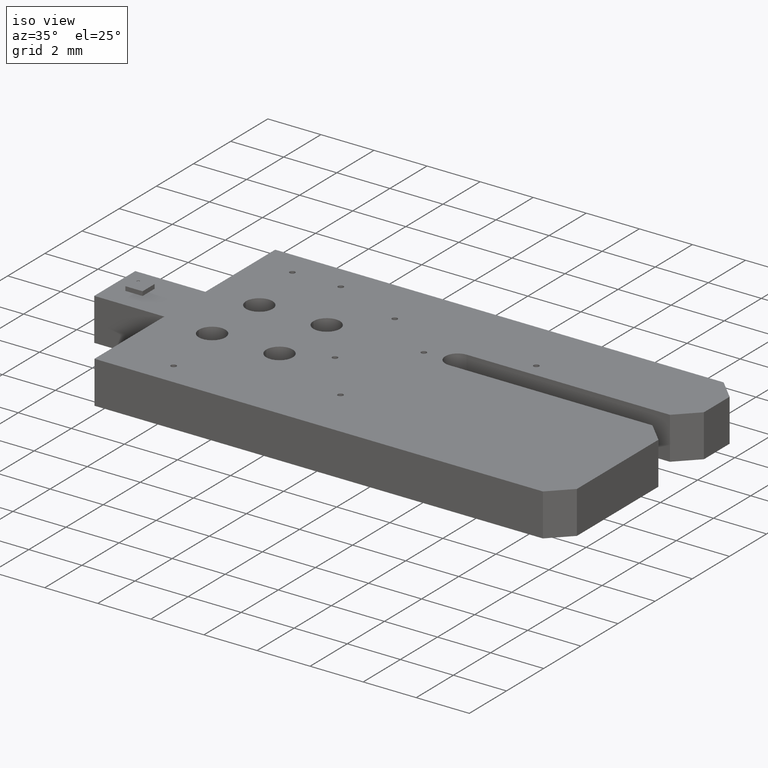
[diagram: clean part render]
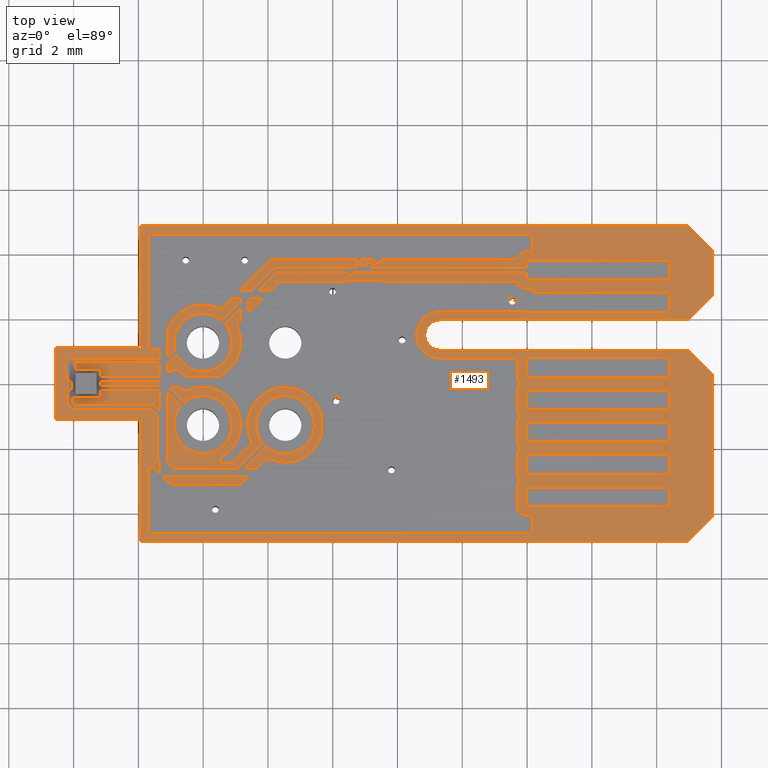
[diagram: tour spotlight — one face highlighted and labeled with its STEP entity id]
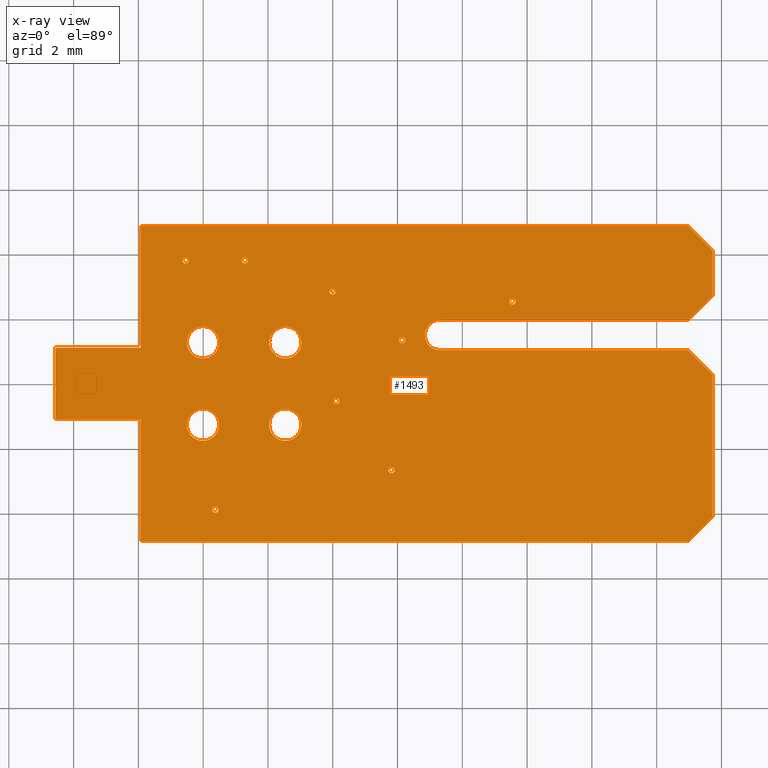
[diagram: x-ray of the same camera — body ghosted, this tour face saturated]
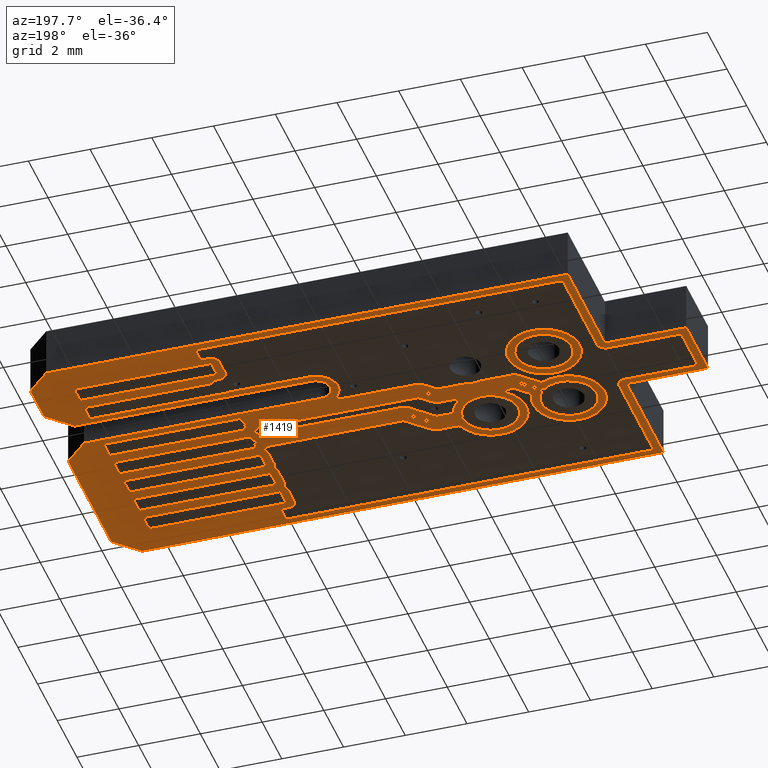
[diagram: tour spotlight — one face highlighted and labeled with its STEP entity id]
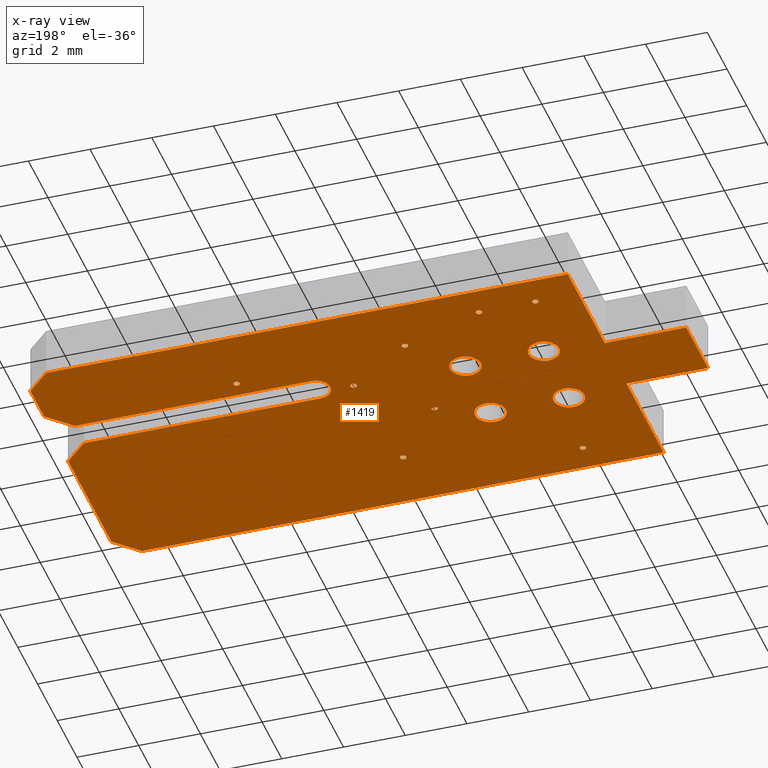
[diagram: x-ray of the same camera — body ghosted, this tour face saturated]
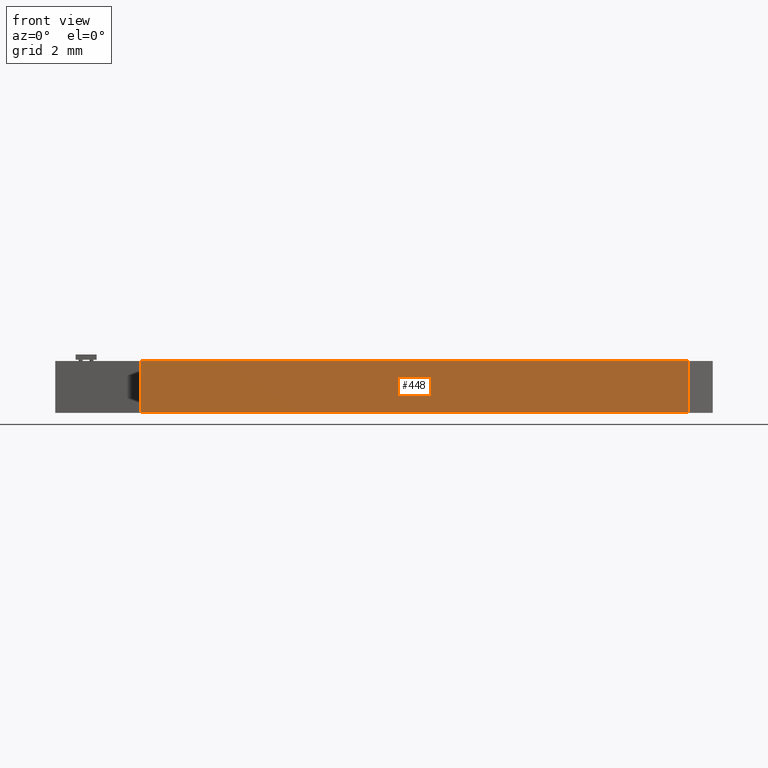
[diagram: tour spotlight — one face highlighted and labeled with its STEP entity id]
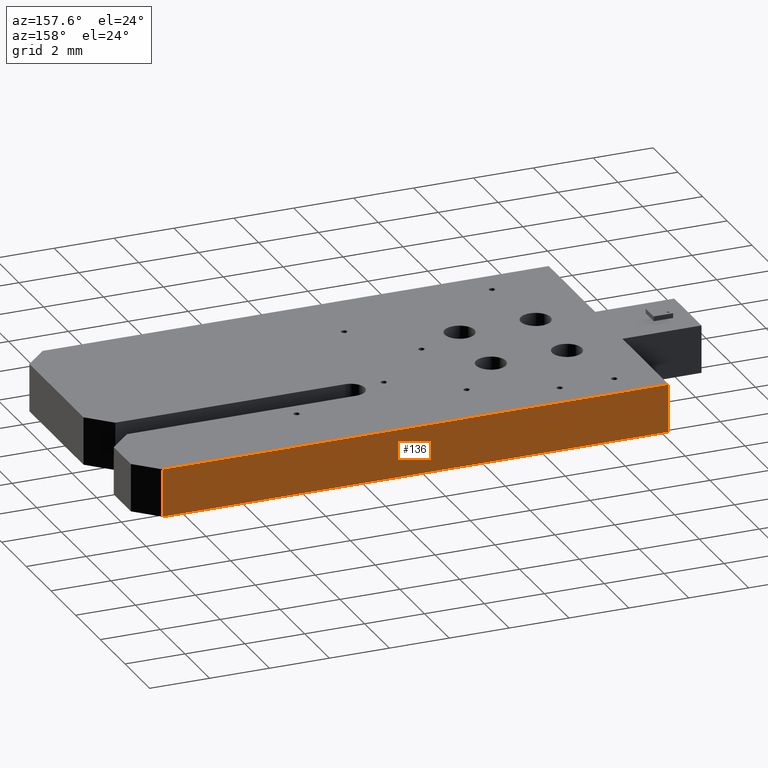
[diagram: tour spotlight — one face highlighted and labeled with its STEP entity id]
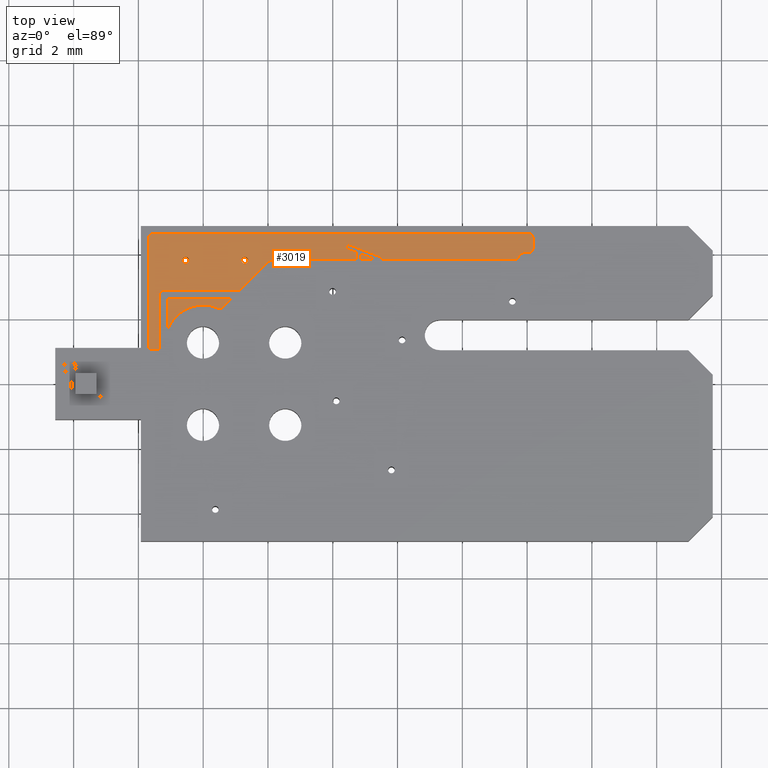
[diagram: tour spotlight — one face highlighted and labeled with its STEP entity id]
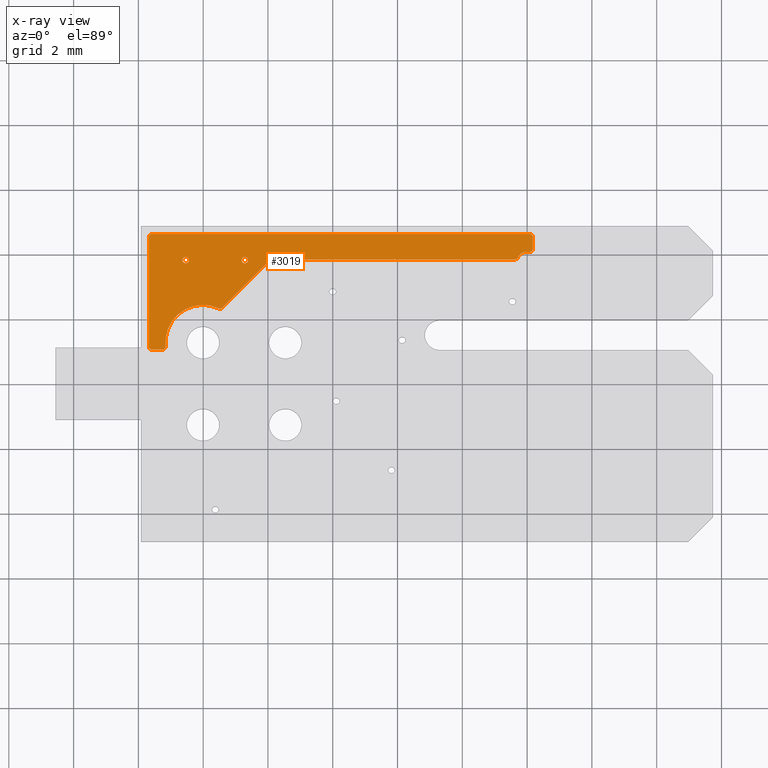
[diagram: x-ray of the same camera — body ghosted, this tour face saturated]
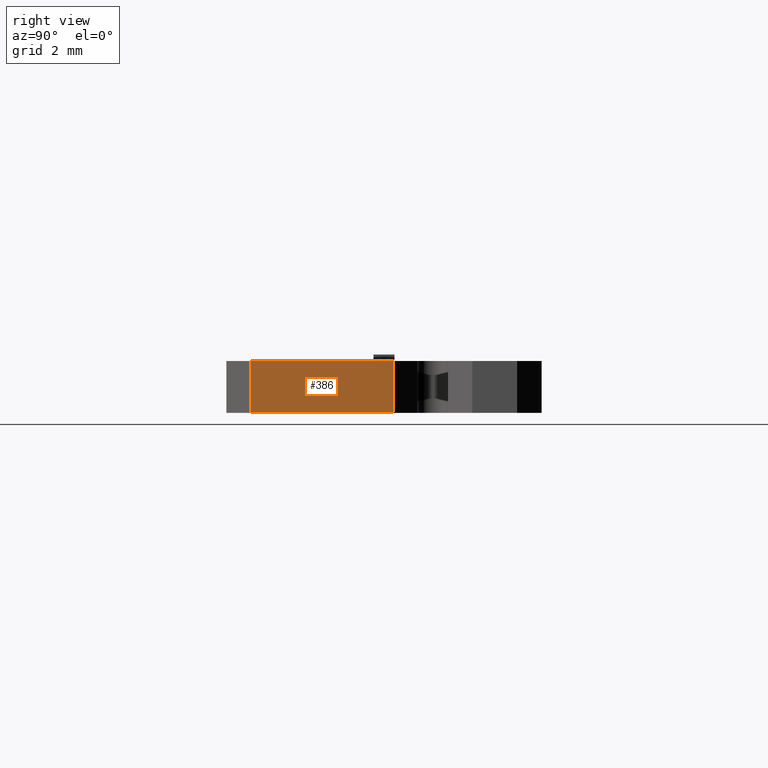
[diagram: tour spotlight — one face highlighted and labeled with its STEP entity id]
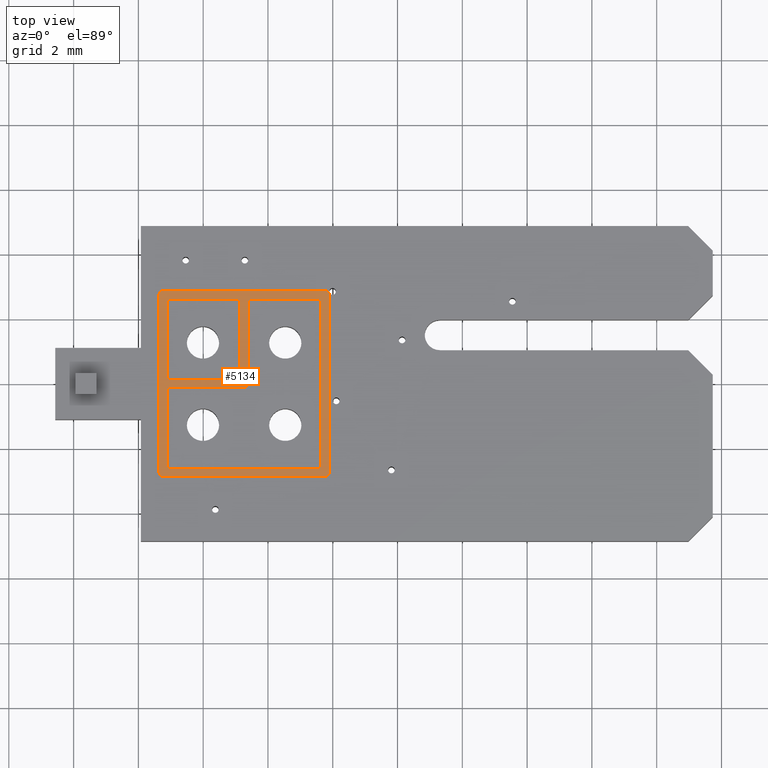
[diagram: tour spotlight — one face highlighted and labeled with its STEP entity id]
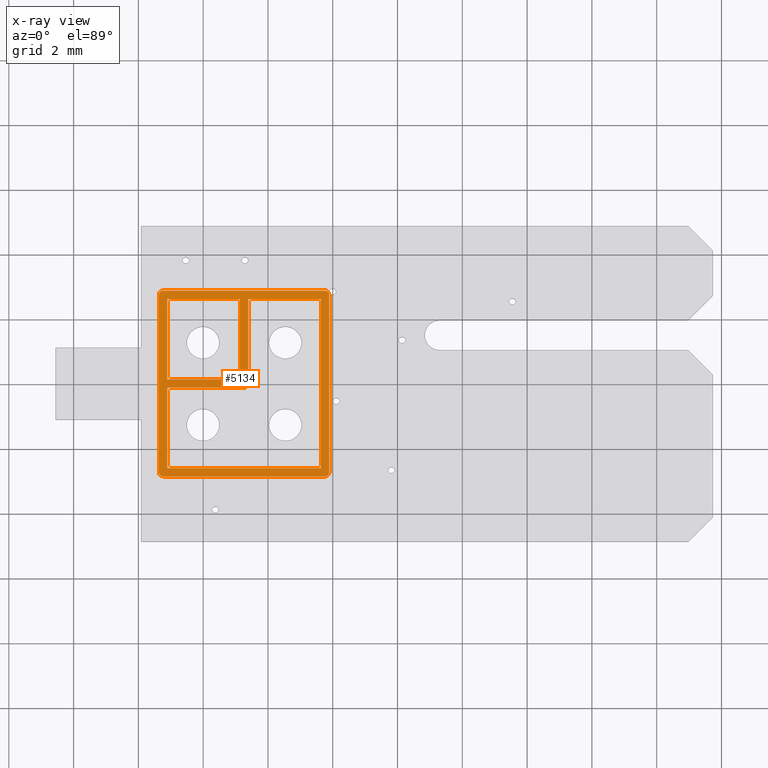
[diagram: x-ray of the same camera — body ghosted, this tour face saturated]
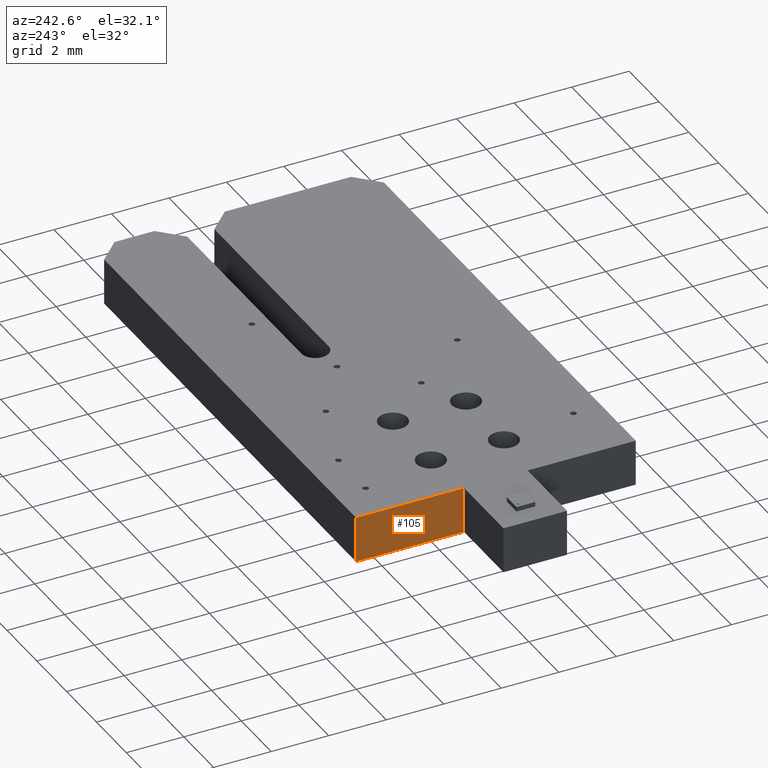
[diagram: tour spotlight — one face highlighted and labeled with its STEP entity id]
A machine part: a face-by-face anatomy tour. The part has 103 B-rep faces; the first image is the clean iso view, then the 8 largest visible faces are spotlighted one at a time (largest first), each with its STEP entity span.

Face 1 — top view, entity #1493. An x-ray twin of the same camera follows (body ghosted, this face saturated) — the face is partly hidden behind the body. In plain terms, the highlighted planar face has unit normal (-0, -0, -1).
Definition (entity closure, byte-faithful):
#70 = VERTEX_POINT('',#71);
#71 = CARTESIAN_POINT('',(4.064008128016,1.104902209804,1.600025400051)
  );
#77 = EDGE_CURVE('',#70,#78,#80,.T.);
#78 = VERTEX_POINT('',#79);
#79 = CARTESIAN_POINT('',(4.076708153416,1.117602235204,1.600025400051)
  );
#80 = CIRCLE('',#81,1.270002540005E-02);
#81 = AXIS2_PLACEMENT_3D('',#82,#83,#84);
#82 = CARTESIAN_POINT('',(4.064008128016,1.117602235204,1.600025400051)
  );
#83 = DIRECTION('',(0.,0.,1.));
#84 = DIRECTION('',(8.789254920238E-15,-1.,0.));
#110 = EDGE_CURVE('',#78,#111,#113,.T.);
#111 = VERTEX_POINT('',#112);
#112 = CARTESIAN_POINT('',(4.076708153416,4.864109728219,1.600025400051)
  );
#113 = LINE('',#114,#115);
#114 = CARTESIAN_POINT('',(4.076708153416,1.117602235204,1.600025400051)
  );
#115 = VECTOR('',#116,1.);
#116 = DIRECTION('',(0.,1.,0.));
#141 = EDGE_CURVE('',#111,#142,#144,.T.);
#142 = VERTEX_POINT('',#143);
#143 = CARTESIAN_POINT('',(20.975181438121,4.864109728219,1.600025400051
    ));
#144 = LINE('',#145,#146);
#145 = CARTESIAN_POINT('',(4.076708153416,4.864109728219,1.600025400051)
  );
#146 = VECTOR('',#147,1.);
#147 = DIRECTION('',(1.,0.,0.));
#172 = EDGE_CURVE('',#142,#173,#175,.T.);
#173 = VERTEX_POINT('',#174);
#174 = CARTESIAN_POINT('',(21.729743459487,4.109547706853,1.600025400051
    ));
#175 = LINE('',#176,#177);
#176 = CARTESIAN_POINT('',(20.975181438121,4.864109728219,1.600025400051
    ));
#177 = VECTOR('',#178,1.);
#178 = DIRECTION('',(0.707106781187,-0.707106781187,0.));
#203 = EDGE_CURVE('',#173,#204,#206,.T.);
#204 = VERTEX_POINT('',#205);
#205 = CARTESIAN_POINT('',(21.729743459487,2.725605963454,1.600025400051
    ));
#206 = LINE('',#207,#208);
#207 = CARTESIAN_POINT('',(21.729743459487,4.109547706853,1.600025400051
    ));
#208 = VECTOR('',#209,1.);
#209 = DIRECTION('',(0.,-1.,0.));
#234 = EDGE_CURVE('',#204,#235,#237,.T.);
#235 = VERTEX_POINT('',#236);
#236 = CARTESIAN_POINT('',(20.975181438121,1.971043942088,1.600025400051
    ));
#237 = LINE('',#238,#239);
#238 = CARTESIAN_POINT('',(21.729743459487,2.725605963454,1.600025400051
    ));
#239 = VECTOR('',#240,1.);
#240 = DIRECTION('',(-0.707106781187,-0.707106781187,0.));
#265 = EDGE_CURVE('',#235,#266,#268,.T.);
#266 = VERTEX_POINT('',#267);
#267 = CARTESIAN_POINT('',(13.309626619253,1.971043942088,1.600025400051
    ));
#268 = LINE('',#269,#270);
#269 = CARTESIAN_POINT('',(20.975181438121,1.971043942088,1.600025400051
    ));
#270 = VECTOR('',#271,1.);
#271 = DIRECTION('',(-1.,1.737992436335E-16,0.));
#296 = EDGE_CURVE('',#266,#297,#299,.T.);
#297 = VERTEX_POINT('',#298);
#298 = CARTESIAN_POINT('',(13.309626619253,1.031242062484,1.600025400051
    ));
#299 = CIRCLE('',#300,0.469900939802);
#300 = AXIS2_PLACEMENT_3D('',#301,#302,#303);
#301 = CARTESIAN_POINT('',(13.309626619253,1.501143002286,1.600025400051
    ));
#302 = DIRECTION('',(0.,0.,1.));
#303 = DIRECTION('',(-1.110223024625E-16,1.,0.));
#329 = EDGE_CURVE('',#297,#330,#332,.T.);
#330 = VERTEX_POINT('',#331);
#331 = CARTESIAN_POINT('',(20.975181438121,1.031242062484,1.600025400051
    ));
#332 = LINE('',#333,#334);
#333 = CARTESIAN_POINT('',(13.309626619253,1.031242062484,1.600025400051
    ));
#334 = VECTOR('',#335,1.);
#335 = DIRECTION('',(1.,-8.689962181674E-17,0.));
#360 = EDGE_CURVE('',#330,#361,#363,.T.);
#361 = VERTEX_POINT('',#362);
#362 = CARTESIAN_POINT('',(21.729743459487,0.276680041118,1.600025400051
    ));
#363 = LINE('',#364,#365);
#364 = CARTESIAN_POINT('',(20.975181438121,1.031242062484,1.600025400051
    ));
#365 = VECTOR('',#366,1.);
#366 = DIRECTION('',(0.707106781187,-0.707106781187,0.));
#391 = EDGE_CURVE('',#361,#392,#394,.T.);
#392 = VERTEX_POINT('',#393);
#393 = CARTESIAN_POINT('',(21.729743459487,-4.109547706853,
    1.600025400051));
#394 = LINE('',#395,#396);
#395 = CARTESIAN_POINT('',(21.729743459487,0.276680041118,1.600025400051
    ));
#396 = VECTOR('',#397,1.);
#397 = DIRECTION('',(0.,-1.,0.));
#422 = EDGE_CURVE('',#392,#423,#425,.T.);
#423 = VERTEX_POINT('',#424);
#424 = CARTESIAN_POINT('',(20.975181438121,-4.864109728219,
    1.600025400051));
#425 = LINE('',#426,#427);
#426 = CARTESIAN_POINT('',(21.729743459487,-4.109547706853,
    1.600025400051));
#427 = VECTOR('',#428,1.);
#428 = DIRECTION('',(-0.707106781187,-0.707106781187,0.));
#453 = EDGE_CURVE('',#423,#454,#456,.T.);
#454 = VERTEX_POINT('',#455);
#455 = CARTESIAN_POINT('',(4.076708153416,-4.864109728219,1.600025400051
    ));
#456 = LINE('',#457,#458);
#457 = CARTESIAN_POINT('',(20.975181438121,-4.864109728219,
    1.600025400051));
#458 = VECTOR('',#459,1.);
#459 = DIRECTION('',(-1.,0.,0.));
#484 = EDGE_CURVE('',#454,#485,#487,.T.);
#485 = VERTEX_POINT('',#486);
#486 = CARTESIAN_POINT('',(4.076708153416,-1.117602235204,1.600025400051
    ));
#487 = LINE('',#488,#489);
#488 = CARTESIAN_POINT('',(4.076708153416,-4.864109728219,1.600025400051
    ));
#489 = VECTOR('',#490,1.);
#490 = DIRECTION('',(0.,1.,0.));
#515 = EDGE_CURVE('',#485,#516,#518,.T.);
#516 = VERTEX_POINT('',#517);
#517 = CARTESIAN_POINT('',(4.064008128016,-1.104902209804,1.600025400051
    ));
#518 = CIRCLE('',#519,1.270002540005E-02);
#519 = AXIS2_PLACEMENT_3D('',#520,#521,#522);
#520 = CARTESIAN_POINT('',(4.064008128016,-1.117602235204,1.600025400051
    ));
#521 = DIRECTION('',(0.,-0.,1.));
#522 = DIRECTION('',(1.,-8.692669701335E-15,-0.));
#548 = EDGE_CURVE('',#516,#549,#551,.T.);
#549 = VERTEX_POINT('',#550);
#550 = CARTESIAN_POINT('',(1.435102870206,-1.104902209804,1.600025400051
    ));
#551 = LINE('',#552,#553);
#552 = CARTESIAN_POINT('',(4.064008128016,-1.104902209804,1.600025400051
    ));
#553 = VECTOR('',#554,1.);
#554 = DIRECTION('',(-1.,0.,0.));
#579 = EDGE_CURVE('',#549,#580,#582,.T.);
#580 = VERTEX_POINT('',#581);
#581 = CARTESIAN_POINT('',(1.435102870206,1.104902209804,1.600025400051)
  );
#582 = LINE('',#583,#584);
#583 = CARTESIAN_POINT('',(1.435102870206,-1.104902209804,1.600025400051
    ));
#584 = VECTOR('',#585,1.);
#585 = DIRECTION('',(0.,1.,0.));
#610 = EDGE_CURVE('',#580,#70,#611,.T.);
#611 = LINE('',#612,#613);
#612 = CARTESIAN_POINT('',(1.435102870206,1.104902209804,1.600025400051)
  );
#613 = VECTOR('',#614,1.);
#614 = DIRECTION('',(1.,0.,0.));
#634 = VERTEX_POINT('',#635);
#635 = CARTESIAN_POINT('',(5.562611125222,3.810007620015,1.600025400051)
  );
#641 = EDGE_CURVE('',#634,#642,#644,.T.);
#642 = VERTEX_POINT('',#643);
#643 = CARTESIAN_POINT('',(5.359410718821,3.810007620015,1.600025400051)
  );
#644 = CIRCLE('',#645,0.1016002032);
#645 = AXIS2_PLACEMENT_3D('',#646,#647,#648);
#646 = CARTESIAN_POINT('',(5.461010922022,3.810007620015,1.600025400051)
  );
#647 = DIRECTION('',(0.,0.,1.));
#648 = DIRECTION('',(1.,1.110223024625E-16,-0.));
#674 = EDGE_CURVE('',#642,#634,#675,.T.);
#675 = CIRCLE('',#676,0.1016002032);
#676 = AXIS2_PLACEMENT_3D('',#677,#678,#679);
#677 = CARTESIAN_POINT('',(5.461010922022,3.810007620015,1.600025400051)
  );
#678 = DIRECTION('',(0.,0.,1.));
#679 = DIRECTION('',(-1.,-1.110223024625E-16,0.));
#700 = VERTEX_POINT('',#701);
#701 = CARTESIAN_POINT('',(6.494411988824,-1.270002540005,1.600025400051
    ));
#707 = EDGE_CURVE('',#700,#708,#710,.T.);
#708 = VERTEX_POINT('',#709);
#709 = CARTESIAN_POINT('',(5.494411988824,-1.270002540005,1.600025400051
    ));
#710 = CIRCLE('',#711,0.5);
#711 = AXIS2_PLACEMENT_3D('',#712,#713,#714);
#712 = CARTESIAN_POINT('',(5.994411988824,-1.270002540005,1.600025400051
    ));
#713 = DIRECTION('',(0.,0.,1.));
#714 = DIRECTION('',(1.,1.110223024625E-16,-0.));
#740 = EDGE_CURVE('',#708,#700,#741,.T.);
#741 = CIRCLE('',#742,0.5);
#742 = AXIS2_PLACEMENT_3D('',#743,#744,#745);
#743 = CARTESIAN_POINT('',(5.994411988824,-1.270002540005,1.600025400051
    ));
#744 = DIRECTION('',(0.,0.,1.));
#745 = DIRECTION('',(-1.,-1.110223024625E-16,0.));
#766 = VERTEX_POINT('',#767);
#767 = CARTESIAN_POINT('',(6.494411988824,1.270002540005,1.600025400051)
  );
#773 = EDGE_CURVE('',#766,#774,#776,.T.);
#774 = VERTEX_POINT('',#775);
#775 = CARTESIAN_POINT('',(5.494411988824,1.270002540005,1.600025400051)
  );
#776 = CIRCLE('',#777,0.5);
#777 = AXIS2_PLACEMENT_3D('',#778,#779,#780);
#778 = CARTESIAN_POINT('',(5.994411988824,1.270002540005,1.600025400051)
  );
#779 = DIRECTION('',(0.,0.,1.));
#780 = DIRECTION('',(1.,1.110223024625E-16,-0.));
#806 = EDGE_CURVE('',#774,#766,#807,.T.);
#807 = CIRCLE('',#808,0.5);
#808 = AXIS2_PLACEMENT_3D('',#809,#810,#811);
#809 = CARTESIAN_POINT('',(5.994411988824,1.270002540005,1.600025400051)
  );
#810 = DIRECTION('',(0.,0.,1.));
#811 = DIRECTION('',(-1.,-1.110223024625E-16,0.));
#832 = VERTEX_POINT('',#833);
#833 = CARTESIAN_POINT('',(6.477012954026,-3.886207772416,1.600025400051
    ));
#839 = EDGE_CURVE('',#832,#840,#842,.T.);
#840 = VERTEX_POINT('',#841);
#841 = CARTESIAN_POINT('',(6.273812547625,-3.886207772416,1.600025400051
    ));
#842 = CIRCLE('',#843,0.1016002032);
#843 = AXIS2_PLACEMENT_3D('',#844,#845,#846);
#844 = CARTESIAN_POINT('',(6.375412750826,-3.886207772416,1.600025400051
    ));
#845 = DIRECTION('',(0.,0.,1.));
#846 = DIRECTION('',(1.,1.110223024625E-16,-0.));
#872 = EDGE_CURVE('',#840,#832,#873,.T.);
#873 = CIRCLE('',#874,0.1016002032);
#874 = AXIS2_PLACEMENT_3D('',#875,#876,#877);
#875 = CARTESIAN_POINT('',(6.375412750826,-3.886207772416,1.600025400051
    ));
#876 = DIRECTION('',(0.,0.,1.));
#877 = DIRECTION('',(-1.,-1.110223024625E-16,0.));
#898 = VERTEX_POINT('',#899);
#899 = CARTESIAN_POINT('',(7.388516637033,3.810007620015,1.600025400051)
  );
#905 = EDGE_CURVE('',#898,#906,#908,.T.);
#906 = VERTEX_POINT('',#907);
#907 = CARTESIAN_POINT('',(7.185316230632,3.810007620015,1.600025400051)
  );
#908 = CIRCLE('',#909,0.1016002032);
#909 = AXIS2_PLACEMENT_3D('',#910,#911,#912);
#910 = CARTESIAN_POINT('',(7.286916433833,3.810007620015,1.600025400051)
  );
#911 = DIRECTION('',(0.,0.,1.));
#912 = DIRECTION('',(1.,1.110223024625E-16,-0.));
#938 = EDGE_CURVE('',#906,#898,#939,.T.);
#939 = CIRCLE('',#940,0.1016002032);
#940 = AXIS2_PLACEMENT_3D('',#941,#942,#943);
#941 = CARTESIAN_POINT('',(7.286916433833,3.810007620015,1.600025400051)
  );
#942 = DIRECTION('',(0.,0.,1.));
#943 = DIRECTION('',(-1.,-1.110223024625E-16,0.));
#964 = VERTEX_POINT('',#965);
#965 = CARTESIAN_POINT('',(9.034417068834,-1.270002540005,1.600025400051
    ));
#971 = EDGE_CURVE('',#964,#972,#974,.T.);
#972 = VERTEX_POINT('',#973);
#973 = CARTESIAN_POINT('',(8.034417068834,-1.270002540005,1.600025400051
    ));
#974 = CIRCLE('',#975,0.5);
#975 = AXIS2_PLACEMENT_3D('',#976,#977,#978);
#976 = CARTESIAN_POINT('',(8.534417068834,-1.270002540005,1.600025400051
    ));
#977 = DIRECTION('',(0.,0.,1.));
#978 = DIRECTION('',(1.,1.110223024625E-16,-0.));
#1004 = EDGE_CURVE('',#972,#964,#1005,.T.);
#1005 = CIRCLE('',#1006,0.5);
#1006 = AXIS2_PLACEMENT_3D('',#1007,#1008,#1009);
#1007 = CARTESIAN_POINT('',(8.534417068834,-1.270002540005,
    1.600025400051));
#1008 = DIRECTION('',(0.,0.,1.));
#1009 = DIRECTION('',(-1.,-1.110223024625E-16,0.));
#1030 = VERTEX_POINT('',#1031);
#1031 = CARTESIAN_POINT('',(9.034417068834,1.270002540005,1.600025400051
    ));
#1037 = EDGE_CURVE('',#1030,#1038,#1040,.T.);
#1038 = VERTEX_POINT('',#1039);
#1039 = CARTESIAN_POINT('',(8.034417068834,1.270002540005,1.600025400051
    ));
#1040 = CIRCLE('',#1041,0.5);
#1041 = AXIS2_PLACEMENT_3D('',#1042,#1043,#1044);
#1042 = CARTESIAN_POINT('',(8.534417068834,1.270002540005,1.600025400051
    ));
#1043 = DIRECTION('',(0.,0.,1.));
#1044 = DIRECTION('',(1.,1.110223024625E-16,-0.));
#1070 = EDGE_CURVE('',#1038,#1030,#1071,.T.);
#1071 = CIRCLE('',#1072,0.5);
#1072 = AXIS2_PLACEMENT_3D('',#1073,#1074,#1075);
#1073 = CARTESIAN_POINT('',(8.534417068834,1.270002540005,1.600025400051
    ));
#1074 = DIRECTION('',(0.,0.,1.));
#1075 = DIRECTION('',(-1.,-1.110223024625E-16,0.));
#1096 = VERTEX_POINT('',#1097);
#1097 = CARTESIAN_POINT('',(10.096898653797,2.844805689611,
    1.600025400051));
#1103 = EDGE_CURVE('',#1096,#1104,#1106,.T.);
#1104 = VERTEX_POINT('',#1105);
#1105 = CARTESIAN_POINT('',(9.893698247396,2.844805689611,1.600025400051
    ));
#1106 = CIRCLE('',#1107,0.1016002032);
#1107 = AXIS2_PLACEMENT_3D('',#1108,#1109,#1110);
#1108 = CARTESIAN_POINT('',(9.995298450597,2.844805689611,1.600025400051
    ));
#1109 = DIRECTION('',(0.,0.,1.));
#1110 = DIRECTION('',(1.,1.110223024625E-16,-0.));
#1136 = EDGE_CURVE('',#1104,#1096,#1137,.T.);
#1137 = CIRCLE('',#1138,0.1016002032);
#1138 = AXIS2_PLACEMENT_3D('',#1139,#1140,#1141);
#1139 = CARTESIAN_POINT('',(9.995298450597,2.844805689611,1.600025400051
    ));
#1140 = DIRECTION('',(0.,0.,1.));
#1141 = DIRECTION('',(-1.,-1.110223024625E-16,0.));
#1162 = VERTEX_POINT('',#1163);
#1163 = CARTESIAN_POINT('',(10.210820421641,-0.533401066802,
    1.600025400051));
#1169 = EDGE_CURVE('',#1162,#1170,#1172,.T.);
#1170 = VERTEX_POINT('',#1171);
#1171 = CARTESIAN_POINT('',(10.00762001524,-0.533401066802,
    1.600025400051));
#1172 = CIRCLE('',#1173,0.1016002032);
#1173 = AXIS2_PLACEMENT_3D('',#1174,#1175,#1176);
#1174 = CARTESIAN_POINT('',(10.10922021844,-0.533401066802,
    1.600025400051));
#1175 = DIRECTION('',(0.,0.,1.));
#1176 = DIRECTION('',(1.,1.110223024625E-16,-0.));
#1202 = EDGE_CURVE('',#1170,#1162,#1203,.T.);
#1203 = CIRCLE('',#1204,0.1016002032);
#1204 = AXIS2_PLACEMENT_3D('',#1205,#1206,#1207);
#1205 = CARTESIAN_POINT('',(10.10922021844,-0.533401066802,
    1.600025400051));
#1206 = DIRECTION('',(0.,0.,1.));
#1207 = DIRECTION('',(-1.,-1.110223024625E-16,0.));
#1228 = VERTEX_POINT('',#1229);
#1229 = CARTESIAN_POINT('',(11.912623825248,-2.667005334011,
    1.600025400051));
#1235 = EDGE_CURVE('',#1228,#1236,#1238,.T.);
#1236 = VERTEX_POINT('',#1237);
#1237 = CARTESIAN_POINT('',(11.709423418847,-2.667005334011,
    1.600025400051));
#1238 = CIRCLE('',#1239,0.1016002032);
#1239 = AXIS2_PLACEMENT_3D('',#1240,#1241,#1242);
#1240 = CARTESIAN_POINT('',(11.811023622047,-2.667005334011,
    1.600025400051));
#1241 = DIRECTION('',(0.,0.,1.));
#1242 = DIRECTION('',(1.,1.110223024625E-16,-0.));
#1268 = EDGE_CURVE('',#1236,#1228,#1269,.T.);
#1269 = CIRCLE('',#1270,0.1016002032);
#1270 = AXIS2_PLACEMENT_3D('',#1271,#1272,#1273);
#1271 = CARTESIAN_POINT('',(11.811023622047,-2.667005334011,
    1.600025400051));
#1272 = DIRECTION('',(0.,0.,1.));
#1273 = DIRECTION('',(-1.,-1.110223024625E-16,0.));
#1294 = VERTEX_POINT('',#1295);
#1295 = CARTESIAN_POINT('',(12.242824485649,1.346202692405,
    1.600025400051));
#1301 = EDGE_CURVE('',#1294,#1302,#1304,.T.);
#1302 = VERTEX_POINT('',#1303);
#1303 = CARTESIAN_POINT('',(12.039624079248,1.346202692405,
    1.600025400051));
#1304 = CIRCLE('',#1305,0.1016002032);
#1305 = AXIS2_PLACEMENT_3D('',#1306,#1307,#1308);
#1306 = CARTESIAN_POINT('',(12.141224282449,1.346202692405,
    1.600025400051));
#1307 = DIRECTION('',(0.,0.,1.));
#1308 = DIRECTION('',(1.,1.110223024625E-16,-0.));
#1334 = EDGE_CURVE('',#1302,#1294,#1335,.T.);
#1335 = CIRCLE('',#1336,0.1016002032);
#1336 = AXIS2_PLACEMENT_3D('',#1337,#1338,#1339);
#1337 = CARTESIAN_POINT('',(12.141224282449,1.346202692405,
    1.600025400051));
#1338 = DIRECTION('',(0.,0.,1.));
#1339 = DIRECTION('',(-1.,-1.110223024625E-16,0.));
#1360 = VERTEX_POINT('',#1361);
#1361 = CARTESIAN_POINT('',(15.646431292863,2.54000508001,1.600025400051
    ));
#1367 = EDGE_CURVE('',#1360,#1368,#1370,.T.);
#1368 = VERTEX_POINT('',#1369);
#1369 = CARTESIAN_POINT('',(15.443230886462,2.54000508001,1.600025400051
    ));
#1370 = CIRCLE('',#1371,0.1016002032);
#1371 = AXIS2_PLACEMENT_3D('',#1372,#1373,#1374);
#1372 = CARTESIAN_POINT('',(15.544831089662,2.54000508001,1.600025400051
    ));
#1373 = DIRECTION('',(0.,0.,1.));
#1374 = DIRECTION('',(1.,1.110223024625E-16,-0.));
#1400 = EDGE_CURVE('',#1368,#1360,#1401,.T.);
#1401 = CIRCLE('',#1402,0.1016002032);
#1402 = AXIS2_PLACEMENT_3D('',#1403,#1404,#1405);
#1403 = CARTESIAN_POINT('',(15.544831089662,2.54000508001,1.600025400051
    ));
#1404 = DIRECTION('',(0.,0.,1.));
#1405 = DIRECTION('',(-1.,-1.110223024625E-16,0.));
#1493 = ADVANCED_FACE('',(#1494,#1514,#1518,#1522,#1526,#1530,#1534,
    #1538,#1542,#1546,#1550,#1554,#1558),#1562,.F.);
#1494 = FACE_BOUND('',#1495,.F.);
#1495 = EDGE_LOOP('',(#1496,#1497,#1498,#1499,#1500,#1501,#1502,#1503,
    #1504,#1505,#1506,#1507,#1508,#1509,#1510,#1511,#1512,#1513));
#1496 = ORIENTED_EDGE('',*,*,#77,.T.);
#1497 = ORIENTED_EDGE('',*,*,#110,.T.);
#1498 = ORIENTED_EDGE('',*,*,#141,.T.);
#1499 = ORIENTED_EDGE('',*,*,#172,.T.);
#1500 = ORIENTED_EDGE('',*,*,#203,.T.);
#1501 = ORIENTED_EDGE('',*,*,#234,.T.);
#1502 = ORIENTED_EDGE('',*,*,#265,.T.);
#1503 = ORIENTED_EDGE('',*,*,#296,.T.);
#1504 = ORIENTED_EDGE('',*,*,#329,.T.);
#1505 = ORIENTED_EDGE('',*,*,#360,.T.);
#1506 = ORIENTED_EDGE('',*,*,#391,.T.);
#1507 = ORIENTED_EDGE('',*,*,#422,.T.);
#1508 = ORIENTED_EDGE('',*,*,#453,.T.);
#1509 = ORIENTED_EDGE('',*,*,#484,.T.);
#1510 = ORIENTED_EDGE('',*,*,#515,.T.);
#1511 = ORIENTED_EDGE('',*,*,#548,.T.);
#1512 = ORIENTED_EDGE('',*,*,#579,.T.);
#1513 = ORIENTED_EDGE('',*,*,#610,.T.);
#1514 = FACE_BOUND('',#1515,.F.);
#1515 = EDGE_LOOP('',(#1516,#1517));
#1516 = ORIENTED_EDGE('',*,*,#641,.T.);
#1517 = ORIENTED_EDGE('',*,*,#674,.T.);
#1518 = FACE_BOUND('',#1519,.F.);
#1519 = EDGE_LOOP('',(#1520,#1521));
#1520 = ORIENTED_EDGE('',*,*,#707,.T.);
#1521 = ORIENTED_EDGE('',*,*,#740,.T.);
#1522 = FACE_BOUND('',#1523,.F.);
#1523 = EDGE_LOOP('',(#1524,#1525));
#1524 = ORIENTED_EDGE('',*,*,#773,.T.);
#1525 = ORIENTED_EDGE('',*,*,#806,.T.);
#1526 = FACE_BOUND('',#1527,.F.);
#1527 = EDGE_LOOP('',(#1528,#1529));
#1528 = ORIENTED_EDGE('',*,*,#839,.T.);
#1529 = ORIENTED_EDGE('',*,*,#872,.T.);
#1530 = FACE_BOUND('',#1531,.F.);
#1531 = EDGE_LOOP('',(#1532,#1533));
#1532 = ORIENTED_EDGE('',*,*,#905,.T.);
#1533 = ORIENTED_EDGE('',*,*,#938,.T.);
#1534 = FACE_BOUND('',#1535,.F.);
#1535 = EDGE_LOOP('',(#1536,#1537));
#1536 = ORIENTED_EDGE('',*,*,#971,.T.);
#1537 = ORIENTED_EDGE('',*,*,#1004,.T.);
#1538 = FACE_BOUND('',#1539,.F.);
#1539 = EDGE_LOOP('',(#1540,#1541));
#1540 = ORIENTED_EDGE('',*,*,#1037,.T.);
#1541 = ORIENTED_EDGE('',*,*,#1070,.T.);
#1542 = FACE_BOUND('',#1543,.F.);
#1543 = EDGE_LOOP('',(#1544,#1545));
#1544 = ORIENTED_EDGE('',*,*,#1103,.T.);
#1545 = ORIENTED_EDGE('',*,*,#1136,.T.);
#1546 = FACE_BOUND('',#1547,.F.);
#1547 = EDGE_LOOP('',(#1548,#1549));
#1548 = ORIENTED_EDGE('',*,*,#1169,.T.);
#1549 = ORIENTED_EDGE('',*,*,#1202,.T.);
#1550 = FACE_BOUND('',#1551,.F.);
#1551 = EDGE_LOOP('',(#1552,#1553));
#1552 = ORIENTED_EDGE('',*,*,#1235,.T.);
#1553 = ORIENTED_EDGE('',*,*,#1268,.T.);
#1554 = FACE_BOUND('',#1555,.F.);
#1555 = EDGE_LOOP('',(#1556,#1557));
#1556 = ORIENTED_EDGE('',*,*,#1301,.T.);
#1557 = ORIENTED_EDGE('',*,*,#1334,.T.);
#1558 = FACE_BOUND('',#1559,.F.);
#1559 = EDGE_LOOP('',(#1560,#1561));
#1560 = ORIENTED_EDGE('',*,*,#1367,.T.);
#1561 = ORIENTED_EDGE('',*,*,#1400,.T.);
#1562 = PLANE('',#1563);
#1563 = AXIS2_PLACEMENT_3D('',#1564,#1565,#1566);
#1564 = CARTESIAN_POINT('',(12.826647516355,0.326264867474,
    1.600025400051));
#1565 = DIRECTION('',(-0.,-0.,-1.));
#1566 = DIRECTION('',(-1.,0.,0.));

Face 2 — auxiliary view, entity #1419. An x-ray twin of the same camera follows (body ghosted, this face saturated) — the face is partly hidden behind the body. In plain terms, the highlighted planar face has unit normal (-0, -0, -1).
Definition (entity closure, byte-faithful):
#68 = VERTEX_POINT('',#69);
#69 = CARTESIAN_POINT('',(4.064008128016,1.104902209804,0.));
#87 = VERTEX_POINT('',#88);
#88 = CARTESIAN_POINT('',(4.076708153416,1.117602235204,0.));
#94 = EDGE_CURVE('',#68,#87,#95,.T.);
#95 = CIRCLE('',#96,1.270002540005E-02);
#96 = AXIS2_PLACEMENT_3D('',#97,#98,#99);
#97 = CARTESIAN_POINT('',(4.064008128016,1.117602235204,0.));
#98 = DIRECTION('',(0.,0.,1.));
#99 = DIRECTION('',(8.789254920238E-15,-1.,0.));
#119 = VERTEX_POINT('',#120);
#120 = CARTESIAN_POINT('',(4.076708153416,4.864109728219,0.));
#126 = EDGE_CURVE('',#87,#119,#127,.T.);
#127 = LINE('',#128,#129);
#128 = CARTESIAN_POINT('',(4.076708153416,1.117602235204,0.));
#129 = VECTOR('',#130,1.);
#130 = DIRECTION('',(0.,1.,0.));
#150 = VERTEX_POINT('',#151);
#151 = CARTESIAN_POINT('',(20.975181438121,4.864109728219,0.));
#157 = EDGE_CURVE('',#119,#150,#158,.T.);
#158 = LINE('',#159,#160);
#159 = CARTESIAN_POINT('',(4.076708153416,4.864109728219,0.));
#160 = VECTOR('',#161,1.);
#161 = DIRECTION('',(1.,0.,0.));
#181 = VERTEX_POINT('',#182);
#182 = CARTESIAN_POINT('',(21.729743459487,4.109547706853,0.));
#188 = EDGE_CURVE('',#150,#181,#189,.T.);
#189 = LINE('',#190,#191);
#190 = CARTESIAN_POINT('',(20.975181438121,4.864109728219,0.));
#191 = VECTOR('',#192,1.);
#192 = DIRECTION('',(0.707106781187,-0.707106781187,0.));
#212 = VERTEX_POINT('',#213);
#213 = CARTESIAN_POINT('',(21.729743459487,2.725605963454,0.));
#219 = EDGE_CURVE('',#181,#212,#220,.T.);
#220 = LINE('',#221,#222);
#221 = CARTESIAN_POINT('',(21.729743459487,4.109547706853,0.));
#222 = VECTOR('',#223,1.);
#223 = DIRECTION('',(0.,-1.,0.));
#243 = VERTEX_POINT('',#244);
#244 = CARTESIAN_POINT('',(20.975181438121,1.971043942088,0.));
#250 = EDGE_CURVE('',#212,#243,#251,.T.);
#251 = LINE('',#252,#253);
#252 = CARTESIAN_POINT('',(21.729743459487,2.725605963454,0.));
#253 = VECTOR('',#254,1.);
#254 = DIRECTION('',(-0.707106781187,-0.707106781187,0.));
#274 = VERTEX_POINT('',#275);
#275 = CARTESIAN_POINT('',(13.309626619253,1.971043942088,0.));
#281 = EDGE_CURVE('',#243,#274,#282,.T.);
#282 = LINE('',#283,#284);
#283 = CARTESIAN_POINT('',(20.975181438121,1.971043942088,0.));
#284 = VECTOR('',#285,1.);
#285 = DIRECTION('',(-1.,1.737992436335E-16,0.));
#306 = VERTEX_POINT('',#307);
#307 = CARTESIAN_POINT('',(13.309626619253,1.031242062484,0.));
#313 = EDGE_CURVE('',#274,#306,#314,.T.);
#314 = CIRCLE('',#315,0.469900939802);
#315 = AXIS2_PLACEMENT_3D('',#316,#317,#318);
#316 = CARTESIAN_POINT('',(13.309626619253,1.501143002286,0.));
#317 = DIRECTION('',(0.,0.,1.));
#318 = DIRECTION('',(-1.110223024625E-16,1.,0.));
#338 = VERTEX_POINT('',#339);
#339 = CARTESIAN_POINT('',(20.975181438121,1.031242062484,0.));
#345 = EDGE_CURVE('',#306,#338,#346,.T.);
#346 = LINE('',#347,#348);
#347 = CARTESIAN_POINT('',(13.309626619253,1.031242062484,0.));
#348 = VECTOR('',#349,1.);
#349 = DIRECTION('',(1.,-8.689962181674E-17,0.));
#369 = VERTEX_POINT('',#370);
#370 = CARTESIAN_POINT('',(21.729743459487,0.276680041118,0.));
#376 = EDGE_CURVE('',#338,#369,#377,.T.);
#377 = LINE('',#378,#379);
#378 = CARTESIAN_POINT('',(20.975181438121,1.031242062484,0.));
#379 = VECTOR('',#380,1.);
#380 = DIRECTION('',(0.707106781187,-0.707106781187,0.));
#400 = VERTEX_POINT('',#401);
#401 = CARTESIAN_POINT('',(21.729743459487,-4.109547706853,0.));
#407 = EDGE_CURVE('',#369,#400,#408,.T.);
#408 = LINE('',#409,#410);
#409 = CARTESIAN_POINT('',(21.729743459487,0.276680041118,0.));
#410 = VECTOR('',#411,1.);
#411 = DIRECTION('',(0.,-1.,0.));
#431 = VERTEX_POINT('',#432);
#432 = CARTESIAN_POINT('',(20.975181438121,-4.864109728219,0.));
#438 = EDGE_CURVE('',#400,#431,#439,.T.);
#439 = LINE('',#440,#441);
#440 = CARTESIAN_POINT('',(21.729743459487,-4.109547706853,0.));
#441 = VECTOR('',#442,1.);
#442 = DIRECTION('',(-0.707106781187,-0.707106781187,0.));
#462 = VERTEX_POINT('',#463);
#463 = CARTESIAN_POINT('',(4.076708153416,-4.864109728219,0.));
#469 = EDGE_CURVE('',#431,#462,#470,.T.);
#470 = LINE('',#471,#472);
#471 = CARTESIAN_POINT('',(20.975181438121,-4.864109728219,0.));
#472 = VECTOR('',#473,1.);
#473 = DIRECTION('',(-1.,0.,0.));
#493 = VERTEX_POINT('',#494);
#494 = CARTESIAN_POINT('',(4.076708153416,-1.117602235204,0.));
#500 = EDGE_CURVE('',#462,#493,#501,.T.);
#501 = LINE('',#502,#503);
#502 = CARTESIAN_POINT('',(4.076708153416,-4.864109728219,0.));
#503 = VECTOR('',#504,1.);
#504 = DIRECTION('',(0.,1.,0.));
#525 = VERTEX_POINT('',#526);
#526 = CARTESIAN_POINT('',(4.064008128016,-1.104902209804,0.));
#532 = EDGE_CURVE('',#493,#525,#533,.T.);
#533 = CIRCLE('',#534,1.270002540005E-02);
#534 = AXIS2_PLACEMENT_3D('',#535,#536,#537);
#535 = CARTESIAN_POINT('',(4.064008128016,-1.117602235204,0.));
#536 = DIRECTION('',(0.,-0.,1.));
#537 = DIRECTION('',(1.,-8.692669701335E-15,-0.));
#557 = VERTEX_POINT('',#558);
#558 = CARTESIAN_POINT('',(1.435102870206,-1.104902209804,0.));
#564 = EDGE_CURVE('',#525,#557,#565,.T.);
#565 = LINE('',#566,#567);
#566 = CARTESIAN_POINT('',(4.064008128016,-1.104902209804,0.));
#567 = VECTOR('',#568,1.);
#568 = DIRECTION('',(-1.,0.,0.));
#588 = VERTEX_POINT('',#589);
#589 = CARTESIAN_POINT('',(1.435102870206,1.104902209804,0.));
#595 = EDGE_CURVE('',#557,#588,#596,.T.);
#596 = LINE('',#597,#598);
#597 = CARTESIAN_POINT('',(1.435102870206,-1.104902209804,0.));
#598 = VECTOR('',#599,1.);
#599 = DIRECTION('',(0.,1.,0.));
#617 = EDGE_CURVE('',#588,#68,#618,.T.);
#618 = LINE('',#619,#620);
#619 = CARTESIAN_POINT('',(1.435102870206,1.104902209804,0.));
#620 = VECTOR('',#621,1.);
#621 = DIRECTION('',(1.,0.,0.));
#632 = VERTEX_POINT('',#633);
#633 = CARTESIAN_POINT('',(5.562611125222,3.810007620015,0.));
#651 = VERTEX_POINT('',#652);
#652 = CARTESIAN_POINT('',(5.359410718821,3.810007620015,0.));
#658 = EDGE_CURVE('',#632,#651,#659,.T.);
#659 = CIRCLE('',#660,0.1016002032);
#660 = AXIS2_PLACEMENT_3D('',#661,#662,#663);
#661 = CARTESIAN_POINT('',(5.461010922022,3.810007620015,0.));
#662 = DIRECTION('',(0.,0.,1.));
#663 = DIRECTION('',(1.,1.110223024625E-16,-0.));
#682 = EDGE_CURVE('',#651,#632,#683,.T.);
#683 = CIRCLE('',#684,0.1016002032);
#684 = AXIS2_PLACEMENT_3D('',#685,#686,#687);
#685 = CARTESIAN_POINT('',(5.461010922022,3.810007620015,0.));
#686 = DIRECTION('',(0.,0.,1.));
#687 = DIRECTION('',(-1.,-1.110223024625E-16,0.));
#698 = VERTEX_POINT('',#699);
#699 = CARTESIAN_POINT('',(6.494411988824,-1.270002540005,0.));
#717 = VERTEX_POINT('',#718);
#718 = CARTESIAN_POINT('',(5.494411988824,-1.270002540005,0.));
#724 = EDGE_CURVE('',#698,#717,#725,.T.);
#725 = CIRCLE('',#726,0.5);
#726 = AXIS2_PLACEMENT_3D('',#727,#728,#729);
#727 = CARTESIAN_POINT('',(5.994411988824,-1.270002540005,0.));
#728 = DIRECTION('',(0.,0.,1.));
#729 = DIRECTION('',(1.,1.110223024625E-16,-0.));
#748 = EDGE_CURVE('',#717,#698,#749,.T.);
#749 = CIRCLE('',#750,0.5);
#750 = AXIS2_PLACEMENT_3D('',#751,#752,#753);
#751 = CARTESIAN_POINT('',(5.994411988824,-1.270002540005,0.));
#752 = DIRECTION('',(0.,0.,1.));
#753 = DIRECTION('',(-1.,-1.110223024625E-16,0.));
#764 = VERTEX_POINT('',#765);
#765 = CARTESIAN_POINT('',(6.494411988824,1.270002540005,0.));
#783 = VERTEX_POINT('',#784);
#784 = CARTESIAN_POINT('',(5.494411988824,1.270002540005,0.));
#790 = EDGE_CURVE('',#764,#783,#791,.T.);
#791 = CIRCLE('',#792,0.5);
#792 = AXIS2_PLACEMENT_3D('',#793,#794,#795);
#793 = CARTESIAN_POINT('',(5.994411988824,1.270002540005,0.));
#794 = DIRECTION('',(0.,0.,1.));
#795 = DIRECTION('',(1.,1.110223024625E-16,-0.));
#814 = EDGE_CURVE('',#783,#764,#815,.T.);
#815 = CIRCLE('',#816,0.5);
#816 = AXIS2_PLACEMENT_3D('',#817,#818,#819);
#817 = CARTESIAN_POINT('',(5.994411988824,1.270002540005,0.));
#818 = DIRECTION('',(0.,0.,1.));
#819 = DIRECTION('',(-1.,-1.110223024625E-16,0.));
#830 = VERTEX_POINT('',#831);
#831 = CARTESIAN_POINT('',(6.477012954026,-3.886207772416,0.));
#849 = VERTEX_POINT('',#850);
#850 = CARTESIAN_POINT('',(6.273812547625,-3.886207772416,0.));
#856 = EDGE_CURVE('',#830,#849,#857,.T.);
#857 = CIRCLE('',#858,0.1016002032);
#858 = AXIS2_PLACEMENT_3D('',#859,#860,#861);
#859 = CARTESIAN_POINT('',(6.375412750826,-3.886207772416,0.));
#860 = DIRECTION('',(0.,0.,1.));
#861 = DIRECTION('',(1.,1.110223024625E-16,-0.));
#880 = EDGE_CURVE('',#849,#830,#881,.T.);
#881 = CIRCLE('',#882,0.1016002032);
#882 = AXIS2_PLACEMENT_3D('',#883,#884,#885);
#883 = CARTESIAN_POINT('',(6.375412750826,-3.886207772416,0.));
#884 = DIRECTION('',(0.,0.,1.));
#885 = DIRECTION('',(-1.,-1.110223024625E-16,0.));
#896 = VERTEX_POINT('',#897);
#897 = CARTESIAN_POINT('',(7.388516637033,3.810007620015,0.));
#915 = VERTEX_POINT('',#916);
#916 = CARTESIAN_POINT('',(7.185316230632,3.810007620015,0.));
#922 = EDGE_CURVE('',#896,#915,#923,.T.);
#923 = CIRCLE('',#924,0.1016002032);
#924 = AXIS2_PLACEMENT_3D('',#925,#926,#927);
#925 = CARTESIAN_POINT('',(7.286916433833,3.810007620015,0.));
#926 = DIRECTION('',(0.,0.,1.));
#927 = DIRECTION('',(1.,1.110223024625E-16,-0.));
#946 = EDGE_CURVE('',#915,#896,#947,.T.);
#947 = CIRCLE('',#948,0.1016002032);
#948 = AXIS2_PLACEMENT_3D('',#949,#950,#951);
#949 = CARTESIAN_POINT('',(7.286916433833,3.810007620015,0.));
#950 = DIRECTION('',(0.,0.,1.));
#951 = DIRECTION('',(-1.,-1.110223024625E-16,0.));
#962 = VERTEX_POINT('',#963);
#963 = CARTESIAN_POINT('',(9.034417068834,-1.270002540005,0.));
#981 = VERTEX_POINT('',#982);
#982 = CARTESIAN_POINT('',(8.034417068834,-1.270002540005,0.));
#988 = EDGE_CURVE('',#962,#981,#989,.T.);
#989 = CIRCLE('',#990,0.5);
#990 = AXIS2_PLACEMENT_3D('',#991,#992,#993);
#991 = CARTESIAN_POINT('',(8.534417068834,-1.270002540005,0.));
#992 = DIRECTION('',(0.,0.,1.));
#993 = DIRECTION('',(1.,1.110223024625E-16,-0.));
#1012 = EDGE_CURVE('',#981,#962,#1013,.T.);
#1013 = CIRCLE('',#1014,0.5);
#1014 = AXIS2_PLACEMENT_3D('',#1015,#1016,#1017);
#1015 = CARTESIAN_POINT('',(8.534417068834,-1.270002540005,0.));
#1016 = DIRECTION('',(0.,0.,1.));
#1017 = DIRECTION('',(-1.,-1.110223024625E-16,0.));
#1028 = VERTEX_POINT('',#1029);
#1029 = CARTESIAN_POINT('',(9.034417068834,1.270002540005,0.));
#1047 = VERTEX_POINT('',#1048);
#1048 = CARTESIAN_POINT('',(8.034417068834,1.270002540005,0.));
#1054 = EDGE_CURVE('',#1028,#1047,#1055,.T.);
#1055 = CIRCLE('',#1056,0.5);
#1056 = AXIS2_PLACEMENT_3D('',#1057,#1058,#1059);
#1057 = CARTESIAN_POINT('',(8.534417068834,1.270002540005,0.));
#1058 = DIRECTION('',(0.,0.,1.));
#1059 = DIRECTION('',(1.,1.110223024625E-16,-0.));
#1078 = EDGE_CURVE('',#1047,#1028,#1079,.T.);
#1079 = CIRCLE('',#1080,0.5);
#1080 = AXIS2_PLACEMENT_3D('',#1081,#1082,#1083);
#1081 = CARTESIAN_POINT('',(8.534417068834,1.270002540005,0.));
#1082 = DIRECTION('',(0.,0.,1.));
#1083 = DIRECTION('',(-1.,-1.110223024625E-16,0.));
#1094 = VERTEX_POINT('',#1095);
#1095 = CARTESIAN_POINT('',(10.096898653797,2.844805689611,0.));
#1113 = VERTEX_POINT('',#1114);
#1114 = CARTESIAN_POINT('',(9.893698247396,2.844805689611,0.));
#1120 = EDGE_CURVE('',#1094,#1113,#1121,.T.);
#1121 = CIRCLE('',#1122,0.1016002032);
#1122 = AXIS2_PLACEMENT_3D('',#1123,#1124,#1125);
#1123 = CARTESIAN_POINT('',(9.995298450597,2.844805689611,0.));
#1124 = DIRECTION('',(0.,0.,1.));
#1125 = DIRECTION('',(1.,1.110223024625E-16,-0.));
#1144 = EDGE_CURVE('',#1113,#1094,#1145,.T.);
#1145 = CIRCLE('',#1146,0.1016002032);
#1146 = AXIS2_PLACEMENT_3D('',#1147,#1148,#1149);
#1147 = CARTESIAN_POINT('',(9.995298450597,2.844805689611,0.));
#1148 = DIRECTION('',(0.,0.,1.));
#1149 = DIRECTION('',(-1.,-1.110223024625E-16,0.));
#1160 = VERTEX_POINT('',#1161);
#1161 = CARTESIAN_POINT('',(10.210820421641,-0.533401066802,0.));
#1179 = VERTEX_POINT('',#1180);
#1180 = CARTESIAN_POINT('',(10.00762001524,-0.533401066802,0.));
#1186 = EDGE_CURVE('',#1160,#1179,#1187,.T.);
#1187 = CIRCLE('',#1188,0.1016002032);
#1188 = AXIS2_PLACEMENT_3D('',#1189,#1190,#1191);
#1189 = CARTESIAN_POINT('',(10.10922021844,-0.533401066802,0.));
#1190 = DIRECTION('',(0.,0.,1.));
#1191 = DIRECTION('',(1.,1.110223024625E-16,-0.));
#1210 = EDGE_CURVE('',#1179,#1160,#1211,.T.);
#1211 = CIRCLE('',#1212,0.1016002032);
#1212 = AXIS2_PLACEMENT_3D('',#1213,#1214,#1215);
#1213 = CARTESIAN_POINT('',(10.10922021844,-0.533401066802,0.));
#1214 = DIRECTION('',(0.,0.,1.));
#1215 = DIRECTION('',(-1.,-1.110223024625E-16,0.));
#1226 = VERTEX_POINT('',#1227);
#1227 = CARTESIAN_POINT('',(11.912623825248,-2.667005334011,0.));
#1245 = VERTEX_POINT('',#1246);
#1246 = CARTESIAN_POINT('',(11.709423418847,-2.667005334011,0.));
#1252 = EDGE_CURVE('',#1226,#1245,#1253,.T.);
#1253 = CIRCLE('',#1254,0.1016002032);
#1254 = AXIS2_PLACEMENT_3D('',#1255,#1256,#1257);
#1255 = CARTESIAN_POINT('',(11.811023622047,-2.667005334011,0.));
#1256 = DIRECTION('',(0.,0.,1.));
#1257 = DIRECTION('',(1.,1.110223024625E-16,-0.));
#1276 = EDGE_CURVE('',#1245,#1226,#1277,.T.);
#1277 = CIRCLE('',#1278,0.1016002032);
#1278 = AXIS2_PLACEMENT_3D('',#1279,#1280,#1281);
#1279 = CARTESIAN_POINT('',(11.811023622047,-2.667005334011,0.));
#1280 = DIRECTION('',(0.,0.,1.));
#1281 = DIRECTION('',(-1.,-1.110223024625E-16,0.));
#1292 = VERTEX_POINT('',#1293);
#1293 = CARTESIAN_POINT('',(12.242824485649,1.346202692405,0.));
#1311 = VERTEX_POINT('',#1312);
#1312 = CARTESIAN_POINT('',(12.039624079248,1.346202692405,0.));
#1318 = EDGE_CURVE('',#1292,#1311,#1319,.T.);
#1319 = CIRCLE('',#1320,0.1016002032);
#1320 = AXIS2_PLACEMENT_3D('',#1321,#1322,#1323);
#1321 = CARTESIAN_POINT('',(12.141224282449,1.346202692405,0.));
#1322 = DIRECTION('',(0.,0.,1.));
#1323 = DIRECTION('',(1.,1.110223024625E-16,-0.));
#1342 = EDGE_CURVE('',#1311,#1292,#1343,.T.);
#1343 = CIRCLE('',#1344,0.1016002032);
#1344 = AXIS2_PLACEMENT_3D('',#1345,#1346,#1347);
#1345 = CARTESIAN_POINT('',(12.141224282449,1.346202692405,0.));
#1346 = DIRECTION('',(0.,0.,1.));
#1347 = DIRECTION('',(-1.,-1.110223024625E-16,0.));
#1358 = VERTEX_POINT('',#1359);
#1359 = CARTESIAN_POINT('',(15.646431292863,2.54000508001,0.));
#1377 = VERTEX_POINT('',#1378);
#1378 = CARTESIAN_POINT('',(15.443230886462,2.54000508001,0.));
#1384 = EDGE_CURVE('',#1358,#1377,#1385,.T.);
#1385 = CIRCLE('',#1386,0.1016002032);
#1386 = AXIS2_PLACEMENT_3D('',#1387,#1388,#1389);
#1387 = CARTESIAN_POINT('',(15.544831089662,2.54000508001,0.));
#1388 = DIRECTION('',(0.,0.,1.));
#1389 = DIRECTION('',(1.,1.110223024625E-16,-0.));
#1408 = EDGE_CURVE('',#1377,#1358,#1409,.T.);
#1409 = CIRCLE('',#1410,0.1016002032);
#1410 = AXIS2_PLACEMENT_3D('',#1411,#1412,#1413);
#1411 = CARTESIAN_POINT('',(15.544831089662,2.54000508001,0.));
#1412 = DIRECTION('',(0.,0.,1.));
#1413 = DIRECTION('',(-1.,-1.110223024625E-16,0.));
#1419 = ADVANCED_FACE('',(#1420,#1440,#1444,#1448,#1452,#1456,#1460,
    #1464,#1468,#1472,#1476,#1480,#1484),#1488,.T.);
#1420 = FACE_BOUND('',#1421,.T.);
#1421 = EDGE_LOOP('',(#1422,#1423,#1424,#1425,#1426,#1427,#1428,#1429,
    #1430,#1431,#1432,#1433,#1434,#1435,#1436,#1437,#1438,#1439));
#1422 = ORIENTED_EDGE('',*,*,#94,.T.);
#1423 = ORIENTED_EDGE('',*,*,#126,.T.);
#1424 = ORIENTED_EDGE('',*,*,#157,.T.);
#1425 = ORIENTED_EDGE('',*,*,#188,.T.);
#1426 = ORIENTED_EDGE('',*,*,#219,.T.);
#1427 = ORIENTED_EDGE('',*,*,#250,.T.);
#1428 = ORIENTED_EDGE('',*,*,#281,.T.);
#1429 = ORIENTED_EDGE('',*,*,#313,.T.);
#1430 = ORIENTED_EDGE('',*,*,#345,.T.);
#1431 = ORIENTED_EDGE('',*,*,#376,.T.);
#1432 = ORIENTED_EDGE('',*,*,#407,.T.);
#1433 = ORIENTED_EDGE('',*,*,#438,.T.);
#1434 = ORIENTED_EDGE('',*,*,#469,.T.);
#1435 = ORIENTED_EDGE('',*,*,#500,.T.);
#1436 = ORIENTED_EDGE('',*,*,#532,.T.);
#1437 = ORIENTED_EDGE('',*,*,#564,.T.);
#1438 = ORIENTED_EDGE('',*,*,#595,.T.);
#1439 = ORIENTED_EDGE('',*,*,#617,.T.);
#1440 = FACE_BOUND('',#1441,.T.);
#1441 = EDGE_LOOP('',(#1442,#1443));
#1442 = ORIENTED_EDGE('',*,*,#658,.T.);
#1443 = ORIENTED_EDGE('',*,*,#682,.T.);
#1444 = FACE_BOUND('',#1445,.T.);
#1445 = EDGE_LOOP('',(#1446,#1447));
#1446 = ORIENTED_EDGE('',*,*,#724,.T.);
#1447 = ORIENTED_EDGE('',*,*,#748,.T.);
#1448 = FACE_BOUND('',#1449,.T.);
#1449 = EDGE_LOOP('',(#1450,#1451));
#1450 = ORIENTED_EDGE('',*,*,#790,.T.);
#1451 = ORIENTED_EDGE('',*,*,#814,.T.);
#1452 = FACE_BOUND('',#1453,.T.);
#1453 = EDGE_LOOP('',(#1454,#1455));
#1454 = ORIENTED_EDGE('',*,*,#856,.T.);
#1455 = ORIENTED_EDGE('',*,*,#880,.T.);
#1456 = FACE_BOUND('',#1457,.T.);
#1457 = EDGE_LOOP('',(#1458,#1459));
#1458 = ORIENTED_EDGE('',*,*,#922,.T.);
#1459 = ORIENTED_EDGE('',*,*,#946,.T.);
#1460 = FACE_BOUND('',#1461,.T.);
#1461 = EDGE_LOOP('',(#1462,#1463));
#1462 = ORIENTED_EDGE('',*,*,#988,.T.);
#1463 = ORIENTED_EDGE('',*,*,#1012,.T.);
#1464 = FACE_BOUND('',#1465,.T.);
#1465 = EDGE_LOOP('',(#1466,#1467));
#1466 = ORIENTED_EDGE('',*,*,#1054,.T.);
#1467 = ORIENTED_EDGE('',*,*,#1078,.T.);
#1468 = FACE_BOUND('',#1469,.T.);
#1469 = EDGE_LOOP('',(#1470,#1471));
#1470 = ORIENTED_EDGE('',*,*,#1120,.T.);
#1471 = ORIENTED_EDGE('',*,*,#1144,.T.);
#1472 = FACE_BOUND('',#1473,.T.);
#1473 = EDGE_LOOP('',(#1474,#1475));
#1474 = ORIENTED_EDGE('',*,*,#1186,.T.);
#1475 = ORIENTED_EDGE('',*,*,#1210,.T.);
#1476 = FACE_BOUND('',#1477,.T.);
#1477 = EDGE_LOOP('',(#1478,#1479));
#1478 = ORIENTED_EDGE('',*,*,#1252,.T.);
#1479 = ORIENTED_EDGE('',*,*,#1276,.T.);
#1480 = FACE_BOUND('',#1481,.T.);
#1481 = EDGE_LOOP('',(#1482,#1483));
#1482 = ORIENTED_EDGE('',*,*,#1318,.T.);
#1483 = ORIENTED_EDGE('',*,*,#1342,.T.);
#1484 = FACE_BOUND('',#1485,.T.);
#1485 = EDGE_LOOP('',(#1486,#1487));
#1486 = ORIENTED_EDGE('',*,*,#1384,.T.);
#1487 = ORIENTED_EDGE('',*,*,#1408,.T.);
#1488 = PLANE('',#1489);
#1489 = AXIS2_PLACEMENT_3D('',#1490,#1491,#1492);
#1490 = CARTESIAN_POINT('',(12.826647516355,0.326264867474,0.));
#1491 = DIRECTION('',(-0.,-0.,-1.));
#1492 = DIRECTION('',(-1.,0.,0.));

Face 3 — front view, entity #448. In plain terms, the highlighted planar face has unit normal (0, -1, 0).
Definition (entity closure, byte-faithful):
#423 = VERTEX_POINT('',#424);
#424 = CARTESIAN_POINT('',(20.975181438121,-4.864109728219,
    1.600025400051));
#430 = EDGE_CURVE('',#431,#423,#433,.T.);
#431 = VERTEX_POINT('',#432);
#432 = CARTESIAN_POINT('',(20.975181438121,-4.864109728219,0.));
#433 = LINE('',#434,#435);
#434 = CARTESIAN_POINT('',(20.975181438121,-4.864109728219,0.));
#435 = VECTOR('',#436,1.);
#436 = DIRECTION('',(0.,0.,1.));
#448 = ADVANCED_FACE('',(#449),#474,.T.);
#449 = FACE_BOUND('',#450,.T.);
#450 = EDGE_LOOP('',(#451,#452,#460,#468));
#451 = ORIENTED_EDGE('',*,*,#430,.T.);
#452 = ORIENTED_EDGE('',*,*,#453,.T.);
#453 = EDGE_CURVE('',#423,#454,#456,.T.);
#454 = VERTEX_POINT('',#455);
#455 = CARTESIAN_POINT('',(4.076708153416,-4.864109728219,1.600025400051
    ));
#456 = LINE('',#457,#458);
#457 = CARTESIAN_POINT('',(20.975181438121,-4.864109728219,
    1.600025400051));
#458 = VECTOR('',#459,1.);
#459 = DIRECTION('',(-1.,0.,0.));
#460 = ORIENTED_EDGE('',*,*,#461,.F.);
#461 = EDGE_CURVE('',#462,#454,#464,.T.);
#462 = VERTEX_POINT('',#463);
#463 = CARTESIAN_POINT('',(4.076708153416,-4.864109728219,0.));
#464 = LINE('',#465,#466);
#465 = CARTESIAN_POINT('',(4.076708153416,-4.864109728219,0.));
#466 = VECTOR('',#467,1.);
#467 = DIRECTION('',(0.,0.,1.));
#468 = ORIENTED_EDGE('',*,*,#469,.F.);
#469 = EDGE_CURVE('',#431,#462,#470,.T.);
#470 = LINE('',#471,#472);
#471 = CARTESIAN_POINT('',(20.975181438121,-4.864109728219,0.));
#472 = VECTOR('',#473,1.);
#473 = DIRECTION('',(-1.,0.,0.));
#474 = PLANE('',#475);
#475 = AXIS2_PLACEMENT_3D('',#476,#477,#478);
#476 = CARTESIAN_POINT('',(20.975181438121,-4.864109728219,0.));
#477 = DIRECTION('',(0.,-1.,0.));
#478 = DIRECTION('',(-1.,0.,0.));

Face 4 — auxiliary view, entity #136. In plain terms, the highlighted planar face has unit normal (0, 1, 0).
Definition (entity closure, byte-faithful):
#111 = VERTEX_POINT('',#112);
#112 = CARTESIAN_POINT('',(4.076708153416,4.864109728219,1.600025400051)
  );
#118 = EDGE_CURVE('',#119,#111,#121,.T.);
#119 = VERTEX_POINT('',#120);
#120 = CARTESIAN_POINT('',(4.076708153416,4.864109728219,0.));
#121 = LINE('',#122,#123);
#122 = CARTESIAN_POINT('',(4.076708153416,4.864109728219,0.));
#123 = VECTOR('',#124,1.);
#124 = DIRECTION('',(0.,0.,1.));
#136 = ADVANCED_FACE('',(#137),#162,.T.);
#137 = FACE_BOUND('',#138,.T.);
#138 = EDGE_LOOP('',(#139,#140,#148,#156));
#139 = ORIENTED_EDGE('',*,*,#118,.T.);
#140 = ORIENTED_EDGE('',*,*,#141,.T.);
#141 = EDGE_CURVE('',#111,#142,#144,.T.);
#142 = VERTEX_POINT('',#143);
#143 = CARTESIAN_POINT('',(20.975181438121,4.864109728219,1.600025400051
    ));
#144 = LINE('',#145,#146);
#145 = CARTESIAN_POINT('',(4.076708153416,4.864109728219,1.600025400051)
  );
#146 = VECTOR('',#147,1.);
#147 = DIRECTION('',(1.,0.,0.));
#148 = ORIENTED_EDGE('',*,*,#149,.F.);
#149 = EDGE_CURVE('',#150,#142,#152,.T.);
#150 = VERTEX_POINT('',#151);
#151 = CARTESIAN_POINT('',(20.975181438121,4.864109728219,0.));
#152 = LINE('',#153,#154);
#153 = CARTESIAN_POINT('',(20.975181438121,4.864109728219,0.));
#154 = VECTOR('',#155,1.);
#155 = DIRECTION('',(0.,0.,1.));
#156 = ORIENTED_EDGE('',*,*,#157,.F.);
#157 = EDGE_CURVE('',#119,#150,#158,.T.);
#158 = LINE('',#159,#160);
#159 = CARTESIAN_POINT('',(4.076708153416,4.864109728219,0.));
#160 = VECTOR('',#161,1.);
#161 = DIRECTION('',(1.,0.,0.));
#162 = PLANE('',#163);
#163 = AXIS2_PLACEMENT_3D('',#164,#165,#166);
#164 = CARTESIAN_POINT('',(4.076708153416,4.864109728219,0.));
#165 = DIRECTION('',(0.,1.,0.));
#166 = DIRECTION('',(1.,0.,0.));

Face 5 — top view, entity #3019. An x-ray twin of the same camera follows (body ghosted, this face saturated) — the face is partly hidden behind the body. In plain terms, the highlighted planar face has unit normal (-0, -0, -1).
Definition (entity closure, byte-faithful):
#3019 = ADVANCED_FACE('',(#3020,#3168,#3188),#3208,.T.);
#3020 = FACE_BOUND('',#3021,.T.);
#3021 = EDGE_LOOP('',(#3022,#3032,#3041,#3049,#3058,#3066,#3075,#3083,
    #3092,#3100,#3109,#3118,#3126,#3135,#3143,#3152,#3161));
#3022 = ORIENTED_EDGE('',*,*,#3023,.T.);
#3023 = EDGE_CURVE('',#3024,#3026,#3028,.T.);
#3024 = VERTEX_POINT('',#3025);
#3025 = CARTESIAN_POINT('',(4.742442804339,1.043935100897,0.));
#3026 = VERTEX_POINT('',#3027);
#3027 = CARTESIAN_POINT('',(4.422148496945,1.043936195924,0.));
#3028 = LINE('',#3029,#3030);
#3029 = CARTESIAN_POINT('',(4.742442804339,1.043935100897,0.));
#3030 = VECTOR('',#3031,1.);
#3031 = DIRECTION('',(-0.999999999994,3.41881510709E-06,0.));
#3032 = ORIENTED_EDGE('',*,*,#3033,.T.);
#3033 = EDGE_CURVE('',#3026,#3034,#3036,.T.);
#3034 = VERTEX_POINT('',#3035);
#3035 = CARTESIAN_POINT('',(4.320548641097,1.145536399124,0.));
#3036 = CIRCLE('',#3037,0.1016002032);
#3037 = AXIS2_PLACEMENT_3D('',#3038,#3039,#3040);
#3038 = CARTESIAN_POINT('',(4.422148844298,1.145536399124,0.));
#3039 = DIRECTION('',(0.,0.,-1.));
#3040 = DIRECTION('',(-3.418815102807E-06,-0.999999999994,-0.));
#3041 = ORIENTED_EDGE('',*,*,#3042,.T.);
#3042 = EDGE_CURVE('',#3034,#3043,#3045,.T.);
#3043 = VERTEX_POINT('',#3044);
#3044 = CARTESIAN_POINT('',(4.320548641097,4.518669037338,0.));
#3045 = LINE('',#3046,#3047);
#3046 = CARTESIAN_POINT('',(4.320548641097,1.145536399124,0.));
#3047 = VECTOR('',#3048,1.);
#3048 = DIRECTION('',(0.,1.,0.));
#3049 = ORIENTED_EDGE('',*,*,#3050,.T.);
#3050 = EDGE_CURVE('',#3043,#3051,#3053,.T.);
#3051 = VERTEX_POINT('',#3052);
#3052 = CARTESIAN_POINT('',(4.422148844298,4.620269240538,0.));
#3053 = CIRCLE('',#3054,0.1016002032);
#3054 = AXIS2_PLACEMENT_3D('',#3055,#3056,#3057);
#3055 = CARTESIAN_POINT('',(4.422148844298,4.518669037338,0.));
#3056 = DIRECTION('',(0.,0.,-1.));
#3057 = DIRECTION('',(-1.,9.658521890372E-17,0.));
#3058 = ORIENTED_EDGE('',*,*,#3059,.T.);
#3059 = EDGE_CURVE('',#3051,#3060,#3062,.T.);
#3060 = VERTEX_POINT('',#3061);
#3061 = CARTESIAN_POINT('',(16.078232156464,4.620269240538,0.));
#3062 = LINE('',#3063,#3064);
#3063 = CARTESIAN_POINT('',(4.422148844298,4.620269240538,0.));
#3064 = VECTOR('',#3065,1.);
#3065 = DIRECTION('',(1.,0.,0.));
#3066 = ORIENTED_EDGE('',*,*,#3067,.T.);
#3067 = EDGE_CURVE('',#3060,#3068,#3070,.T.);
#3068 = VERTEX_POINT('',#3069);
#3069 = CARTESIAN_POINT('',(16.179832359665,4.518669037338,0.));
#3070 = CIRCLE('',#3071,0.1016002032);
#3071 = AXIS2_PLACEMENT_3D('',#3072,#3073,#3074);
#3072 = CARTESIAN_POINT('',(16.078232156464,4.518669037338,0.));
#3073 = DIRECTION('',(0.,0.,-1.));
#3074 = DIRECTION('',(4.442920069571E-15,1.,0.));
#3075 = ORIENTED_EDGE('',*,*,#3076,.T.);
#3076 = EDGE_CURVE('',#3068,#3077,#3079,.T.);
#3077 = VERTEX_POINT('',#3078);
#3078 = CARTESIAN_POINT('',(16.179832359665,4.163068326137,0.));
#3079 = LINE('',#3080,#3081);
#3080 = CARTESIAN_POINT('',(16.179832359665,4.518669037338,0.));
#3081 = VECTOR('',#3082,1.);
#3082 = DIRECTION('',(9.990738395313E-15,-1.,0.));
#3083 = ORIENTED_EDGE('',*,*,#3084,.T.);
#3084 = EDGE_CURVE('',#3077,#3085,#3087,.T.);
#3085 = VERTEX_POINT('',#3086);
#3086 = CARTESIAN_POINT('',(16.078232156464,4.061468122936,0.));
#3087 = CIRCLE('',#3088,0.1016002032);
#3088 = AXIS2_PLACEMENT_3D('',#3089,#3090,#3091);
#3089 = CARTESIAN_POINT('',(16.078232156464,4.163068326137,0.));
#3090 = DIRECTION('',(0.,0.,-1.));
#3091 = DIRECTION('',(1.,-1.313558977091E-14,0.));
#3092 = ORIENTED_EDGE('',*,*,#3093,.T.);
#3093 = EDGE_CURVE('',#3085,#3094,#3096,.T.);
#3094 = VERTEX_POINT('',#3095);
#3095 = CARTESIAN_POINT('',(15.963931927864,4.061468122936,0.));
#3096 = LINE('',#3097,#3098);
#3097 = CARTESIAN_POINT('',(16.078232156464,4.061468122936,0.));
#3098 = VECTOR('',#3099,1.);
#3099 = DIRECTION('',(-1.,7.770574307465E-15,0.));
#3100 = ORIENTED_EDGE('',*,*,#3101,.T.);
#3101 = EDGE_CURVE('',#3094,#3102,#3104,.T.);
#3102 = VERTEX_POINT('',#3103);
#3103 = CARTESIAN_POINT('',(15.724760819901,3.897718859268,0.));
#3104 = CIRCLE('',#3105,0.256540513081);
#3105 = AXIS2_PLACEMENT_3D('',#3106,#3107,#3108);
#3106 = CARTESIAN_POINT('',(15.963931927864,3.804927609855,0.));
#3107 = DIRECTION('',(0.,0.,1.));
#3108 = DIRECTION('',(1.915126999136E-15,1.,-0.));
#3109 = ORIENTED_EDGE('',*,*,#3110,.T.);
#3110 = EDGE_CURVE('',#3102,#3111,#3113,.T.);
#3111 = VERTEX_POINT('',#3112);
#3112 = CARTESIAN_POINT('',(15.630039589024,3.832867665735,0.));
#3113 = CIRCLE('',#3114,0.1016002032);
#3114 = AXIS2_PLACEMENT_3D('',#3115,#3116,#3117);
#3115 = CARTESIAN_POINT('',(15.630039589024,3.934467868936,0.));
#3116 = DIRECTION('',(0.,0.,-1.));
#3117 = DIRECTION('',(0.932293714902,-0.36170212766,0.));
#3118 = ORIENTED_EDGE('',*,*,#3119,.T.);
#3119 = EDGE_CURVE('',#3111,#3120,#3122,.T.);
#3120 = VERTEX_POINT('',#3121);
#3121 = CARTESIAN_POINT('',(8.224536449073,3.832867665735,0.));
#3122 = LINE('',#3123,#3124);
#3123 = CARTESIAN_POINT('',(15.630039589024,3.832867665735,0.));
#3124 = VECTOR('',#3125,1.);
#3125 = DIRECTION('',(-1.,5.996745953078E-17,0.));
#3126 = ORIENTED_EDGE('',*,*,#3127,.T.);
#3127 = EDGE_CURVE('',#3120,#3128,#3130,.T.);
#3128 = VERTEX_POINT('',#3129);
#3129 = CARTESIAN_POINT('',(7.989253268135,3.735410181192,0.));
#3130 = CIRCLE('',#3131,0.332740665481);
#3131 = AXIS2_PLACEMENT_3D('',#3132,#3133,#3134);
#3132 = CARTESIAN_POINT('',(8.224536449073,3.500127000254,0.));
#3133 = DIRECTION('',(0.,0.,1.));
#3134 = DIRECTION('',(4.90441503508E-16,1.,-0.));
#3135 = ORIENTED_EDGE('',*,*,#3136,.T.);
#3136 = EDGE_CURVE('',#3128,#3137,#3139,.T.);
#3137 = VERTEX_POINT('',#3138);
#3138 = CARTESIAN_POINT('',(6.594073737734,2.340230650792,0.));
#3139 = LINE('',#3140,#3141);
#3140 = CARTESIAN_POINT('',(7.989253268135,3.735410181192,0.));
#3141 = VECTOR('',#3142,1.);
#3142 = DIRECTION('',(-0.707106781187,-0.707106781187,0.));
#3143 = ORIENTED_EDGE('',*,*,#3144,.T.);
#3144 = EDGE_CURVE('',#3137,#3145,#3147,.T.);
#3145 = VERTEX_POINT('',#3146);
#3146 = CARTESIAN_POINT('',(6.479607875506,2.319845818759,0.));
#3147 = CIRCLE('',#3148,0.1016002032);
#3148 = AXIS2_PLACEMENT_3D('',#3149,#3150,#3151);
#3149 = CARTESIAN_POINT('',(6.522231545081,2.412072843444,0.));
#3150 = DIRECTION('',(0.,0.,-1.));
#3151 = DIRECTION('',(0.707106781187,-0.707106781187,0.));
#3152 = ORIENTED_EDGE('',*,*,#3153,.T.);
#3153 = EDGE_CURVE('',#3145,#3154,#3156,.T.);
#3154 = VERTEX_POINT('',#3155);
#3155 = CARTESIAN_POINT('',(4.843544949453,1.155586561715,0.));
#3156 = CIRCLE('',#3157,1.156540513081);
#3157 = AXIS2_PLACEMENT_3D('',#3158,#3159,#3160);
#3158 = CARTESIAN_POINT('',(5.994411988824,1.270002540005,0.));
#3159 = DIRECTION('',(0.,0.,1.));
#3160 = DIRECTION('',(0.419523467786,0.907744490469,-0.));
#3161 = ORIENTED_EDGE('',*,*,#3162,.T.);
#3162 = EDGE_CURVE('',#3154,#3024,#3163,.T.);
#3163 = CIRCLE('',#3164,0.1016002032);
#3164 = AXIS2_PLACEMENT_3D('',#3165,#3166,#3167);
#3165 = CARTESIAN_POINT('',(4.742443151692,1.145535304097,0.));
#3166 = DIRECTION('',(0.,0.,-1.));
#3167 = DIRECTION('',(0.995094444469,9.892950311347E-02,0.));
#3168 = FACE_BOUND('',#3169,.T.);
#3169 = EDGE_LOOP('',(#3170,#3181));
#3170 = ORIENTED_EDGE('',*,*,#3171,.T.);
#3171 = EDGE_CURVE('',#3172,#3174,#3176,.T.);
#3172 = VERTEX_POINT('',#3173);
#3173 = CARTESIAN_POINT('',(7.185316230632,3.810007620015,0.));
#3174 = VERTEX_POINT('',#3175);
#3175 = CARTESIAN_POINT('',(7.388516637033,3.810007620015,0.));
#3176 = CIRCLE('',#3177,0.1016002032);
#3177 = AXIS2_PLACEMENT_3D('',#3178,#3179,#3180);
#3178 = CARTESIAN_POINT('',(7.286916433833,3.810007620015,0.));
#3179 = DIRECTION('',(0.,0.,1.));
#3180 = DIRECTION('',(-1.,-1.110223024625E-16,0.));
#3181 = ORIENTED_EDGE('',*,*,#3182,.T.);
#3182 = EDGE_CURVE('',#3174,#3172,#3183,.T.);
#3183 = CIRCLE('',#3184,0.1016002032);
#3184 = AXIS2_PLACEMENT_3D('',#3185,#3186,#3187);
#3185 = CARTESIAN_POINT('',(7.286916433833,3.810007620015,0.));
#3186 = DIRECTION('',(0.,0.,1.));
#3187 = DIRECTION('',(1.,1.110223024625E-16,-0.));
#3188 = FACE_BOUND('',#3189,.T.);
#3189 = EDGE_LOOP('',(#3190,#3201));
#3190 = ORIENTED_EDGE('',*,*,#3191,.T.);
#3191 = EDGE_CURVE('',#3192,#3194,#3196,.T.);
#3192 = VERTEX_POINT('',#3193);
#3193 = CARTESIAN_POINT('',(5.359410718821,3.810007620015,0.));
#3194 = VERTEX_POINT('',#3195);
#3195 = CARTESIAN_POINT('',(5.562611125222,3.810007620015,0.));
#3196 = CIRCLE('',#3197,0.1016002032);
#3197 = AXIS2_PLACEMENT_3D('',#3198,#3199,#3200);
#3198 = CARTESIAN_POINT('',(5.461010922022,3.810007620015,0.));
#3199 = DIRECTION('',(0.,0.,1.));
#3200 = DIRECTION('',(-1.,-1.110223024625E-16,0.));
#3201 = ORIENTED_EDGE('',*,*,#3202,.T.);
#3202 = EDGE_CURVE('',#3194,#3192,#3203,.T.);
#3203 = CIRCLE('',#3204,0.1016002032);
#3204 = AXIS2_PLACEMENT_3D('',#3205,#3206,#3207);
#3205 = CARTESIAN_POINT('',(5.461010922022,3.810007620015,0.));
#3206 = DIRECTION('',(0.,0.,1.));
#3207 = DIRECTION('',(1.,1.110223024625E-16,-0.));
#3208 = PLANE('',#3209);
#3209 = AXIS2_PLACEMENT_3D('',#3210,#3211,#3212);
#3210 = CARTESIAN_POINT('',(9.44741927179,3.780181656011,0.));
#3211 = DIRECTION('',(-0.,-0.,-1.));
#3212 = DIRECTION('',(-1.,0.,0.));

Face 6 — right view, entity #386. In plain terms, the highlighted planar face has unit normal (1, 0, 0).
Definition (entity closure, byte-faithful):
#361 = VERTEX_POINT('',#362);
#362 = CARTESIAN_POINT('',(21.729743459487,0.276680041118,1.600025400051
    ));
#368 = EDGE_CURVE('',#369,#361,#371,.T.);
#369 = VERTEX_POINT('',#370);
#370 = CARTESIAN_POINT('',(21.729743459487,0.276680041118,0.));
#371 = LINE('',#372,#373);
#372 = CARTESIAN_POINT('',(21.729743459487,0.276680041118,0.));
#373 = VECTOR('',#374,1.);
#374 = DIRECTION('',(0.,0.,1.));
#386 = ADVANCED_FACE('',(#387),#412,.T.);
#387 = FACE_BOUND('',#388,.T.);
#388 = EDGE_LOOP('',(#389,#390,#398,#406));
#389 = ORIENTED_EDGE('',*,*,#368,.T.);
#390 = ORIENTED_EDGE('',*,*,#391,.T.);
#391 = EDGE_CURVE('',#361,#392,#394,.T.);
#392 = VERTEX_POINT('',#393);
#393 = CARTESIAN_POINT('',(21.729743459487,-4.109547706853,
    1.600025400051));
#394 = LINE('',#395,#396);
#395 = CARTESIAN_POINT('',(21.729743459487,0.276680041118,1.600025400051
    ));
#396 = VECTOR('',#397,1.);
#397 = DIRECTION('',(0.,-1.,0.));
#398 = ORIENTED_EDGE('',*,*,#399,.F.);
#399 = EDGE_CURVE('',#400,#392,#402,.T.);
#400 = VERTEX_POINT('',#401);
#401 = CARTESIAN_POINT('',(21.729743459487,-4.109547706853,0.));
#402 = LINE('',#403,#404);
#403 = CARTESIAN_POINT('',(21.729743459487,-4.109547706853,0.));
#404 = VECTOR('',#405,1.);
#405 = DIRECTION('',(0.,0.,1.));
#406 = ORIENTED_EDGE('',*,*,#407,.F.);
#407 = EDGE_CURVE('',#369,#400,#408,.T.);
#408 = LINE('',#409,#410);
#409 = CARTESIAN_POINT('',(21.729743459487,0.276680041118,0.));
#410 = VECTOR('',#411,1.);
#411 = DIRECTION('',(0.,-1.,0.));
#412 = PLANE('',#413);
#413 = AXIS2_PLACEMENT_3D('',#414,#415,#416);
#414 = CARTESIAN_POINT('',(21.729743459487,0.276680041118,0.));
#415 = DIRECTION('',(1.,0.,-0.));
#416 = DIRECTION('',(0.,-1.,0.));

Face 7 — top view, entity #5134. An x-ray twin of the same camera follows (body ghosted, this face saturated) — the face is partly hidden behind the body. In plain terms, the highlighted planar face has unit normal (-0, -0, -1).
Definition (entity closure, byte-faithful):
#5134 = ADVANCED_FACE('',(#5135,#5205,#5264),#5298,.T.);
#5135 = FACE_BOUND('',#5136,.T.);
#5136 = EDGE_LOOP('',(#5137,#5147,#5156,#5164,#5173,#5181,#5190,#5198));
#5137 = ORIENTED_EDGE('',*,*,#5138,.T.);
#5138 = EDGE_CURVE('',#5139,#5141,#5143,.T.);
#5139 = VERTEX_POINT('',#5140);
#5140 = CARTESIAN_POINT('',(4.637287274575,-2.740157480315,0.));
#5141 = VERTEX_POINT('',#5142);
#5142 = CARTESIAN_POINT('',(4.637287274575,2.739903479807,0.));
#5143 = LINE('',#5144,#5145);
#5144 = CARTESIAN_POINT('',(4.637287274575,-2.740157480315,0.));
#5145 = VECTOR('',#5146,1.);
#5146 = DIRECTION('',(-3.241491020495E-16,1.,0.));
#5147 = ORIENTED_EDGE('',*,*,#5148,.T.);
#5148 = EDGE_CURVE('',#5141,#5149,#5151,.T.);
#5149 = VERTEX_POINT('',#5150);
#5150 = CARTESIAN_POINT('',(4.764287528575,2.866903733807,0.));
#5151 = CIRCLE('',#5152,0.127000254001);
#5152 = AXIS2_PLACEMENT_3D('',#5153,#5154,#5155);
#5153 = CARTESIAN_POINT('',(4.764287528575,2.739903479807,0.));
#5154 = DIRECTION('',(0.,0.,-1.));
#5155 = DIRECTION('',(-1.,1.777168027828E-15,0.));
#5156 = ORIENTED_EDGE('',*,*,#5157,.T.);
#5157 = EDGE_CURVE('',#5149,#5158,#5160,.T.);
#5158 = VERTEX_POINT('',#5159);
#5159 = CARTESIAN_POINT('',(9.764287528575,2.866903733807,0.));
#5160 = LINE('',#5161,#5162);
#5161 = CARTESIAN_POINT('',(4.764287528575,2.866903733807,0.));
#5162 = VECTOR('',#5163,1.);
#5163 = DIRECTION('',(1.,8.881784197001E-17,0.));
#5164 = ORIENTED_EDGE('',*,*,#5165,.T.);
#5165 = EDGE_CURVE('',#5158,#5166,#5168,.T.);
#5166 = VERTEX_POINT('',#5167);
#5167 = CARTESIAN_POINT('',(9.891287782576,2.739903479807,0.));
#5168 = CIRCLE('',#5169,0.127000254001);
#5169 = AXIS2_PLACEMENT_3D('',#5170,#5171,#5172);
#5170 = CARTESIAN_POINT('',(9.764287528575,2.739903479807,0.));
#5171 = DIRECTION('',(0.,0.,-1.));
#5172 = DIRECTION('',(-1.622631677582E-15,1.,0.));
#5173 = ORIENTED_EDGE('',*,*,#5174,.T.);
#5174 = EDGE_CURVE('',#5166,#5175,#5177,.T.);
#5175 = VERTEX_POINT('',#5176);
#5176 = CARTESIAN_POINT('',(9.891287782576,-2.740157480315,0.));
#5177 = LINE('',#5178,#5179);
#5178 = CARTESIAN_POINT('',(9.891287782576,2.739903479807,0.));
#5179 = VECTOR('',#5180,1.);
#5180 = DIRECTION('',(0.,-1.,0.));
#5181 = ORIENTED_EDGE('',*,*,#5182,.T.);
#5182 = EDGE_CURVE('',#5175,#5183,#5185,.T.);
#5183 = VERTEX_POINT('',#5184);
#5184 = CARTESIAN_POINT('',(9.764287528575,-2.867157734315,0.));
#5185 = CIRCLE('',#5186,0.127000254001);
#5186 = AXIS2_PLACEMENT_3D('',#5187,#5188,#5189);
#5187 = CARTESIAN_POINT('',(9.764287528575,-2.740157480315,0.));
#5188 = DIRECTION('',(0.,0.,-1.));
#5189 = DIRECTION('',(1.,1.468095327337E-15,0.));
#5190 = ORIENTED_EDGE('',*,*,#5191,.T.);
#5191 = EDGE_CURVE('',#5183,#5192,#5194,.T.);
#5192 = VERTEX_POINT('',#5193);
#5193 = CARTESIAN_POINT('',(4.764287528575,-2.867157734315,0.));
#5194 = LINE('',#5195,#5196);
#5195 = CARTESIAN_POINT('',(9.764287528575,-2.867157734315,0.));
#5196 = VECTOR('',#5197,1.);
#5197 = DIRECTION('',(-1.,-1.7763568394E-16,0.));
#5198 = ORIENTED_EDGE('',*,*,#5199,.T.);
#5199 = EDGE_CURVE('',#5192,#5139,#5200,.T.);
#5200 = CIRCLE('',#5201,0.127000254001);
#5201 = AXIS2_PLACEMENT_3D('',#5202,#5203,#5204);
#5202 = CARTESIAN_POINT('',(4.764287528575,-2.740157480315,0.));
#5203 = DIRECTION('',(0.,0.,-1.));
#5204 = DIRECTION('',(-7.726817512298E-17,-1.,-0.));
#5205 = FACE_BOUND('',#5206,.T.);
#5206 = EDGE_LOOP('',(#5207,#5217,#5225,#5233,#5241,#5249,#5257));
#5207 = ORIENTED_EDGE('',*,*,#5208,.T.);
#5208 = EDGE_CURVE('',#5209,#5211,#5213,.T.);
#5209 = VERTEX_POINT('',#5210);
#5210 = CARTESIAN_POINT('',(7.264414528829,-0.127000254001,0.));
#5211 = VERTEX_POINT('',#5212);
#5212 = CARTESIAN_POINT('',(4.891287782576,-0.127000254001,0.));
#5213 = LINE('',#5214,#5215);
#5214 = CARTESIAN_POINT('',(7.264414528829,-0.127000254001,0.));
#5215 = VECTOR('',#5216,1.);
#5216 = DIRECTION('',(-1.,0.,0.));
#5217 = ORIENTED_EDGE('',*,*,#5218,.T.);
#5218 = EDGE_CURVE('',#5211,#5219,#5221,.T.);
#5219 = VERTEX_POINT('',#5220);
#5220 = CARTESIAN_POINT('',(4.891287782576,-2.613157226314,0.));
#5221 = LINE('',#5222,#5223);
#5222 = CARTESIAN_POINT('',(4.891287782576,-0.127000254001,0.));
#5223 = VECTOR('',#5224,1.);
#5224 = DIRECTION('',(3.572495339558E-16,-1.,0.));
#5225 = ORIENTED_EDGE('',*,*,#5226,.T.);
#5226 = EDGE_CURVE('',#5219,#5227,#5229,.T.);
#5227 = VERTEX_POINT('',#5228);
#5228 = CARTESIAN_POINT('',(9.637287274575,-2.613157226314,0.));
#5229 = LINE('',#5230,#5231);
#5230 = CARTESIAN_POINT('',(4.891287782576,-2.613157226314,0.));
#5231 = VECTOR('',#5232,1.);
#5232 = DIRECTION('',(1.,1.871425441991E-16,0.));
#5233 = ORIENTED_EDGE('',*,*,#5234,.T.);
#5234 = EDGE_CURVE('',#5227,#5235,#5237,.T.);
#5235 = VERTEX_POINT('',#5236);
#5236 = CARTESIAN_POINT('',(9.637287274575,2.612903225806,0.));
#5237 = LINE('',#5238,#5239);
#5238 = CARTESIAN_POINT('',(9.637287274575,-2.613157226314,0.));
#5239 = VECTOR('',#5240,1.);
#5240 = DIRECTION('',(0.,1.,0.));
#5241 = ORIENTED_EDGE('',*,*,#5242,.T.);
#5242 = EDGE_CURVE('',#5235,#5243,#5245,.T.);
#5243 = VERTEX_POINT('',#5244);
#5244 = CARTESIAN_POINT('',(7.39141478283,2.612903225806,0.));
#5245 = LINE('',#5246,#5247);
#5246 = CARTESIAN_POINT('',(9.637287274575,2.612903225806,0.));
#5247 = VECTOR('',#5248,1.);
#5248 = DIRECTION('',(-1.,-1.977357180705E-16,0.));
#5249 = ORIENTED_EDGE('',*,*,#5250,.T.);
#5250 = EDGE_CURVE('',#5243,#5251,#5253,.T.);
#5251 = VERTEX_POINT('',#5252);
#5252 = CARTESIAN_POINT('',(7.39141478283,0.,0.));
#5253 = LINE('',#5254,#5255);
#5254 = CARTESIAN_POINT('',(7.39141478283,2.612903225806,0.));
#5255 = VECTOR('',#5256,1.);
#5256 = DIRECTION('',(0.,-1.,0.));
#5257 = ORIENTED_EDGE('',*,*,#5258,.T.);
#5258 = EDGE_CURVE('',#5251,#5209,#5259,.T.);
#5259 = CIRCLE('',#5260,0.127000254001);
#5260 = AXIS2_PLACEMENT_3D('',#5261,#5262,#5263);
#5261 = CARTESIAN_POINT('',(7.264414528829,2.022141872263E-16,0.));
#5262 = DIRECTION('',(0.,0.,-1.));
#5263 = DIRECTION('',(1.,-1.54536350246E-15,0.));
#5264 = FACE_BOUND('',#5265,.T.);
#5265 = EDGE_LOOP('',(#5266,#5276,#5284,#5292));
#5266 = ORIENTED_EDGE('',*,*,#5267,.T.);
#5267 = EDGE_CURVE('',#5268,#5270,#5272,.T.);
#5268 = VERTEX_POINT('',#5269);
#5269 = CARTESIAN_POINT('',(7.137414274829,0.127000254001,0.));
#5270 = VERTEX_POINT('',#5271);
#5271 = CARTESIAN_POINT('',(7.137414274829,2.612903225806,0.));
#5272 = LINE('',#5273,#5274);
#5273 = CARTESIAN_POINT('',(7.137414274829,0.127000254001,0.));
#5274 = VECTOR('',#5275,1.);
#5275 = DIRECTION('',(0.,1.,0.));
#5276 = ORIENTED_EDGE('',*,*,#5277,.T.);
#5277 = EDGE_CURVE('',#5270,#5278,#5280,.T.);
#5278 = VERTEX_POINT('',#5279);
#5279 = CARTESIAN_POINT('',(4.891287782576,2.612903225806,0.));
#5280 = LINE('',#5281,#5282);
#5281 = CARTESIAN_POINT('',(7.137414274829,2.612903225806,0.));
#5282 = VECTOR('',#5283,1.);
#5283 = DIRECTION('',(-1.,0.,0.));
#5284 = ORIENTED_EDGE('',*,*,#5285,.T.);
#5285 = EDGE_CURVE('',#5278,#5286,#5288,.T.);
#5286 = VERTEX_POINT('',#5287);
#5287 = CARTESIAN_POINT('',(4.891287782576,0.127000254001,0.));
#5288 = LINE('',#5289,#5290);
#5289 = CARTESIAN_POINT('',(4.891287782576,2.612903225806,0.));
#5290 = VECTOR('',#5291,1.);
#5291 = DIRECTION('',(3.572860364115E-16,-1.,0.));
#5292 = ORIENTED_EDGE('',*,*,#5293,.T.);
#5293 = EDGE_CURVE('',#5286,#5268,#5294,.T.);
#5294 = LINE('',#5295,#5296);
#5295 = CARTESIAN_POINT('',(4.891287782576,0.127000254001,0.));
#5296 = VECTOR('',#5297,1.);
#5297 = DIRECTION('',(1.,0.,0.));
#5298 = PLANE('',#5299);
#5299 = AXIS2_PLACEMENT_3D('',#5300,#5301,#5302);
#5300 = CARTESIAN_POINT('',(7.264287528575,-1.270002540003E-04,0.));
#5301 = DIRECTION('',(-0.,-0.,-1.));
#5302 = DIRECTION('',(-1.,0.,0.));

Face 8 — auxiliary view, entity #105. In plain terms, the highlighted planar face has unit normal (-1, 0, 0).
Definition (entity closure, byte-faithful):
#78 = VERTEX_POINT('',#79);
#79 = CARTESIAN_POINT('',(4.076708153416,1.117602235204,1.600025400051)
  );
#86 = EDGE_CURVE('',#87,#78,#89,.T.);
#87 = VERTEX_POINT('',#88);
#88 = CARTESIAN_POINT('',(4.076708153416,1.117602235204,0.));
#89 = LINE('',#90,#91);
#90 = CARTESIAN_POINT('',(4.076708153416,1.117602235204,0.));
#91 = VECTOR('',#92,1.);
#92 = DIRECTION('',(0.,0.,1.));
#105 = ADVANCED_FACE('',(#106),#131,.T.);
#106 = FACE_BOUND('',#107,.T.);
#107 = EDGE_LOOP('',(#108,#109,#117,#125));
#108 = ORIENTED_EDGE('',*,*,#86,.T.);
#109 = ORIENTED_EDGE('',*,*,#110,.T.);
#110 = EDGE_CURVE('',#78,#111,#113,.T.);
#111 = VERTEX_POINT('',#112);
#112 = CARTESIAN_POINT('',(4.076708153416,4.864109728219,1.600025400051)
  );
#113 = LINE('',#114,#115);
#114 = CARTESIAN_POINT('',(4.076708153416,1.117602235204,1.600025400051)
  );
#115 = VECTOR('',#116,1.);
#116 = DIRECTION('',(0.,1.,0.));
#117 = ORIENTED_EDGE('',*,*,#118,.F.);
#118 = EDGE_CURVE('',#119,#111,#121,.T.);
#119 = VERTEX_POINT('',#120);
#120 = CARTESIAN_POINT('',(4.076708153416,4.864109728219,0.));
#121 = LINE('',#122,#123);
#122 = CARTESIAN_POINT('',(4.076708153416,4.864109728219,0.));
#123 = VECTOR('',#124,1.);
#124 = DIRECTION('',(0.,0.,1.));
#125 = ORIENTED_EDGE('',*,*,#126,.F.);
#126 = EDGE_CURVE('',#87,#119,#127,.T.);
#127 = LINE('',#128,#129);
#128 = CARTESIAN_POINT('',(4.076708153416,1.117602235204,0.));
#129 = VECTOR('',#130,1.);
#130 = DIRECTION('',(0.,1.,0.));
#131 = PLANE('',#132);
#132 = AXIS2_PLACEMENT_3D('',#133,#134,#135);
#133 = CARTESIAN_POINT('',(4.076708153416,1.117602235204,0.));
#134 = DIRECTION('',(-1.,0.,0.));
#135 = DIRECTION('',(0.,1.,0.));